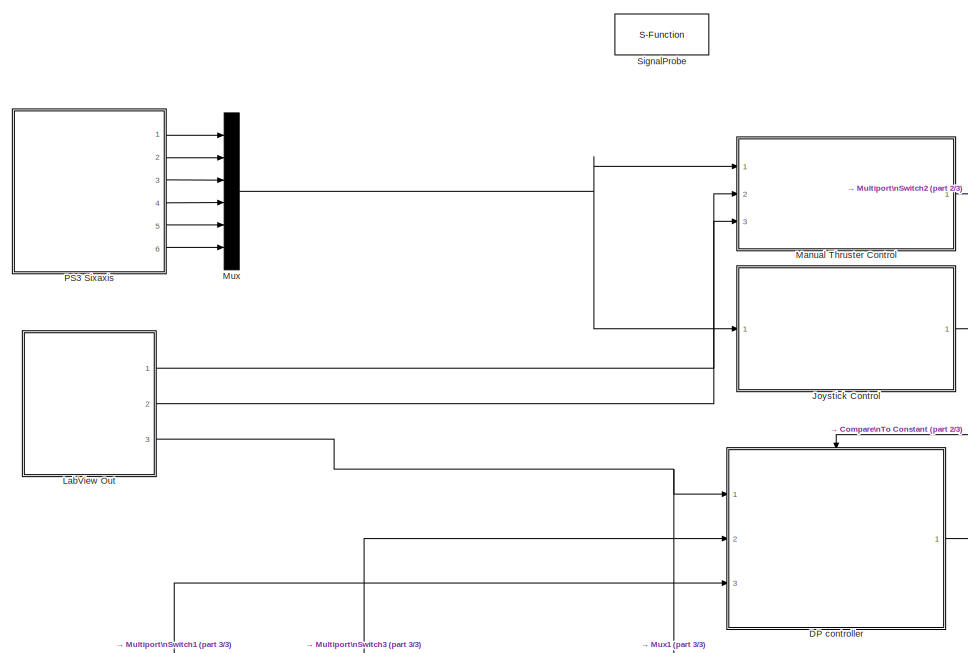
[diagram: root canvas - part 1/3, top left region]
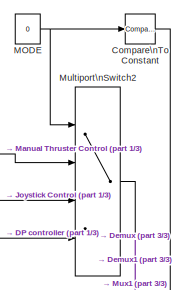
[diagram: root canvas - part 2/3, top right region]
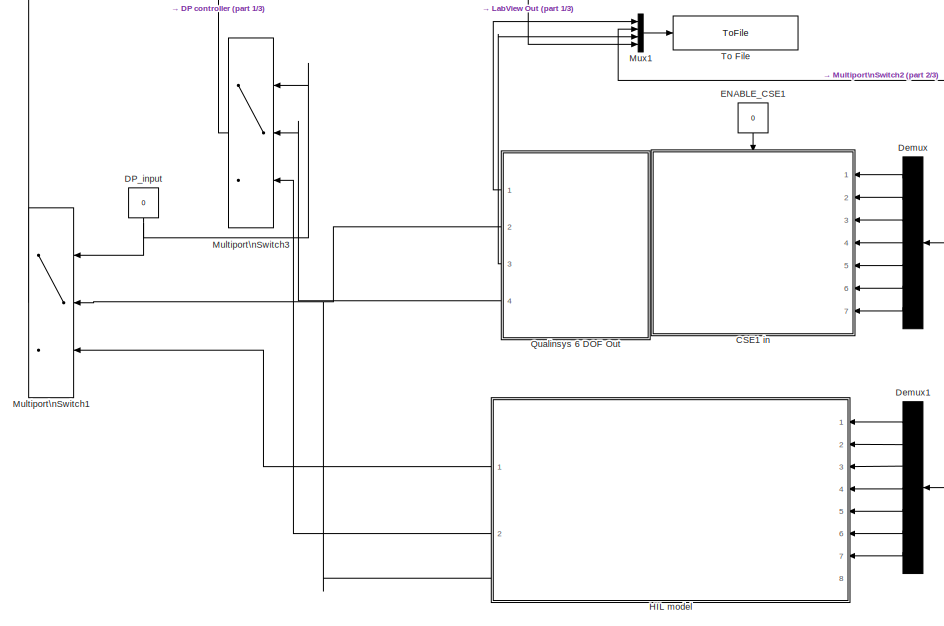
[diagram: root canvas - part 3/3, bottom center region]
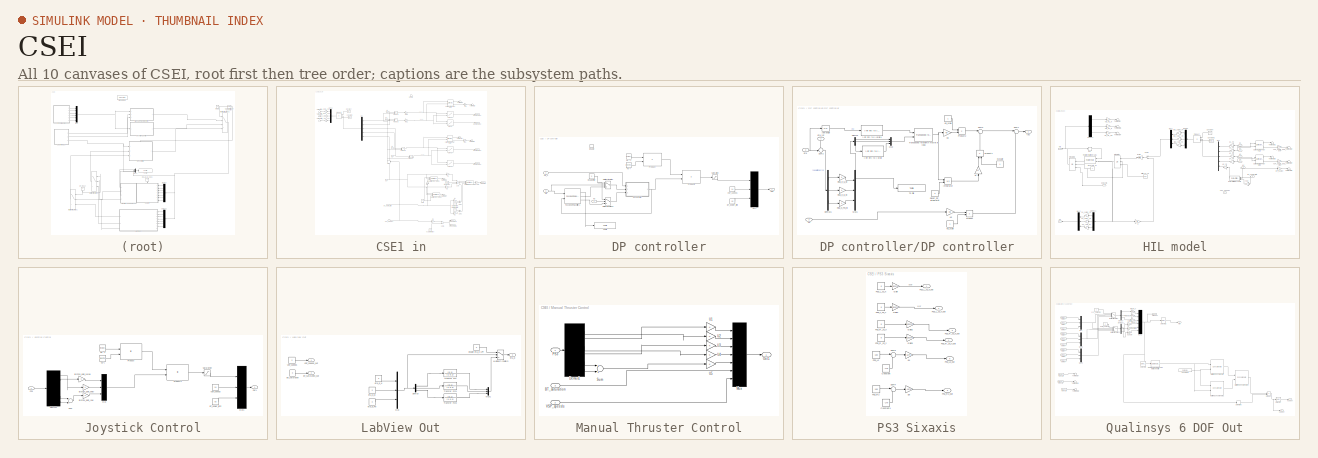
[diagram: thumbnail index - all 10 canvases of the model, root first then tree order]
MODEL CSEI
KIND model
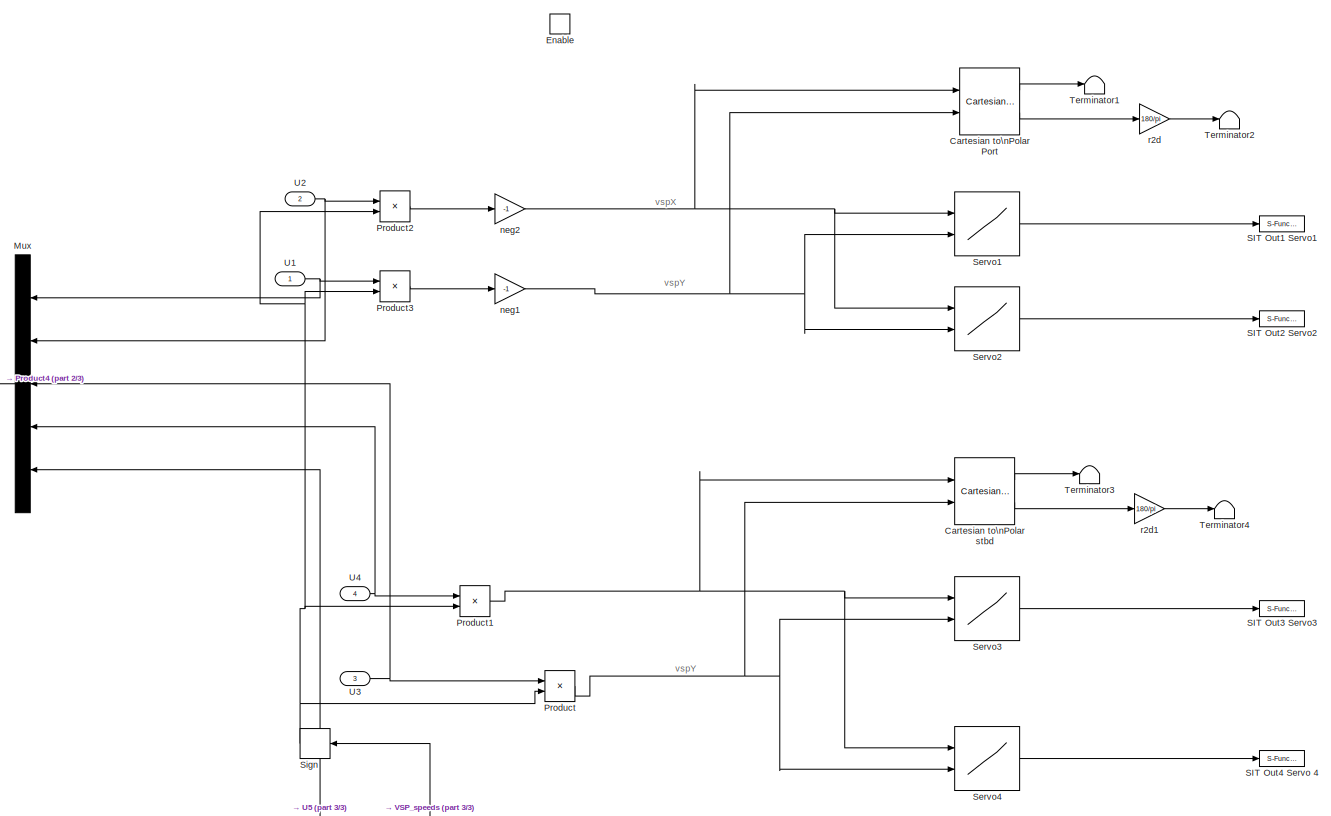
[diagram: CSE1 in - part 1/3, top center region]
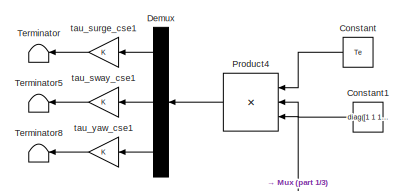
[diagram: CSE1 in - part 2/3, top left region]
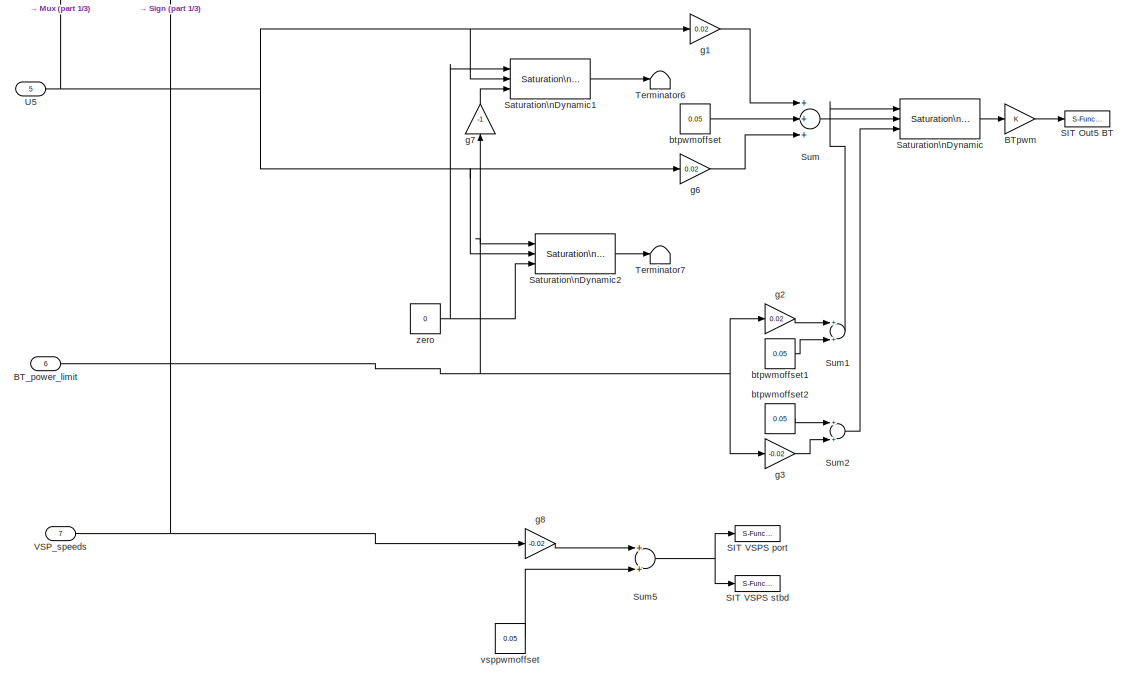
[diagram: CSE1 in - part 3/3, bottom right region]
BLOCK [SubSystem] CSE1 in
  FunctionWithSeparateData = off
  MaskHideContents = off
  MinAlgLoopOccurrences = off
  Opaque = off
  Ports = [7, 0, 1]
  PropExecContextOutsideSubsystem = off
  RTWSystemCode = Auto
  RequestExecContextInheritance = off
BLOCK [Inport] CSE1 in/BT_power_limit
  IconDisplay = Port number
  OutDataType = fixdt(1, 16)
  OutScaling = 2^0
  Port = 6
BLOCK [Gain] CSE1 in/BTpwm
  OutDataType = fixdt(1, 16)
  OutDataTypeMode = Inherit via internal rule
  OutDataTypeStr = Inherit: Inherit via internal rule
  OutScaling = 2^0
  ParamDataTypeStr = Inherit: Inherit via internal rule
  ParameterDataType = fixdt(1, 16)
  ParameterDataTypeMode = Inherit via internal rule
  ParameterScaling = 2^0
  SaturateOnIntegerOverflow = off
BLOCK [Reference] CSE1 in/Cartesian to\nPolar Port  REF=simulink_extras/Transformations/Cartesian to\nPolar
  FunctionWithSeparateData = off
  Ports = [2, 2]
  RTWMemSecDataConstants = Inherit from model
  RTWMemSecDataInternal = Inherit from model
  RTWMemSecDataParameters = Inherit from model
  RTWMemSecFuncExecute = Inherit from model
  RTWMemSecFuncInitTerm = Inherit from model
  ShowPortLabels = FromPortIcon
  SourceBlock = simulink_extras/Transformations/Cartesian to\nPolar
  SourceType = Cart2Polar
  SystemSampleTime = -1
BLOCK [Reference] CSE1 in/Cartesian to\nPolar stbd  REF=simulink_extras/Transformations/Cartesian to\nPolar
  FunctionWithSeparateData = off
  Ports = [2, 2]
  RTWMemSecDataConstants = Inherit from model
  RTWMemSecDataInternal = Inherit from model
  RTWMemSecDataParameters = Inherit from model
  RTWMemSecFuncExecute = Inherit from model
  RTWMemSecFuncInitTerm = Inherit from model
  ShowPortLabels = FromPortIcon
  SourceBlock = simulink_extras/Transformations/Cartesian to\nPolar
  SourceType = Cart2Polar
  SystemSampleTime = -1
BLOCK [Constant] CSE1 in/Constant
  Value = Te
BLOCK [Constant] CSE1 in/Constant1
  Value = diag([1 1 1 1 1])
BLOCK [Demux] CSE1 in/Demux
  DisplayOption = bar
  Outputs = 3
  Ports = [1, 3]
BLOCK [EnablePort] CSE1 in/Enable
  Ports = []
BLOCK [Mux] CSE1 in/Mux
  DisplayOption = bar
  Inputs = 5
  Ports = [5, 1]
BLOCK [Product] CSE1 in/Product
  InputSameDT = off
  OutDataType = fixdt(1, 16)
  OutDataTypeMode = Inherit via internal rule
  OutDataTypeStr = Inherit: Inherit via internal rule
  OutScaling = 2^0
  Ports = [2, 1]
  SaturateOnIntegerOverflow = off
BLOCK [Product] CSE1 in/Product1
  InputSameDT = off
  OutDataType = fixdt(1, 16)
  OutDataTypeMode = Inherit via internal rule
  OutDataTypeStr = Inherit: Inherit via internal rule
  OutScaling = 2^0
  Ports = [2, 1]
  SaturateOnIntegerOverflow = off
BLOCK [Product] CSE1 in/Product2
  InputSameDT = off
  OutDataType = fixdt(1, 16)
  OutDataTypeMode = Inherit via internal rule
  OutDataTypeStr = Inherit: Inherit via internal rule
  OutScaling = 2^0
  Ports = [2, 1]
  SaturateOnIntegerOverflow = off
BLOCK [Product] CSE1 in/Product3
  InputSameDT = off
  OutDataType = fixdt(1, 16)
  OutDataTypeMode = Inherit via internal rule
  OutDataTypeStr = Inherit: Inherit via internal rule
  OutScaling = 2^0
  Ports = [2, 1]
  SaturateOnIntegerOverflow = off
BLOCK [Product] CSE1 in/Product4
  InputSameDT = off
  Inputs = 3
  Multiplication = Matrix(*)
  OutDataTypeMode = Inherit via internal rule
  OutDataTypeStr = Inherit: Inherit via internal rule
  Ports = [3, 1]
  SaturateOnIntegerOverflow = off
BLOCK [S-Function] CSE1 in/SIT Out1 Servo1
  CopyFcn = NI_SIT_IO_callbacks(1);
  DeleteFcn = NI_SIT_IO_callbacks(2);
  EnableBusSupport = off
  FunctionName = NI_SIT_IO
  MaskCallbackString = NI_SIT_IO_callbacks(3);|||NI_SIT_IO_callbacks(4);||
  MaskDescription = Use this outport on any level of nested subsystems to allow the LabVIEW Simulation Interface Toolkit to map hardware to it.
  MaskDisplay = patch([-x x], [-y y], [.90980 .81960 .32156]);\nplot([0 -x x 0], [rad -y y rad]);\nfprintf('SIT%d', portnum);
  MaskEnableString = on,on,on,on,on,on
  MaskIconFrame = off
  MaskIconOpaque = on
  MaskIconRotate = none
  MaskIconUnits = autoscale
  MaskInitialization = NI_SIT_IO_init;
  MaskPortRotate = default
  MaskPromptString = Port number:|Port dimensions (-1 for dynamically sized):|Sample time (-1 for inherited):|Data type:|Signal type:|Block type:
  MaskStyleString = edit,edit,edit,popup(auto|double|single|int8|uint8|int16|uint16|int32|uint32|boolean),popup(auto|real|complex),edit
  MaskTabNameString = Parameters,Parameters,Parameters,Parameters,Parameters,Parameters
  MaskToolTipString = on,on,on,on,on,on
  MaskTunableValueString = off,off,off,off,off,off
  MaskType = SIT Outport
  MaskValueString = 1|-1|-1|auto|auto|0
  MaskVarAliasString = ,,,,,
  MaskVariables = portnum=@1;width=@2;stime=@3;dtype=@4;stype=@5;btype=@6;
  MaskVisibilityString = on,on,on,on,on,off
  Parameters = width dtype portnum stime stype btype
  Ports = [1]
  Priority = 1
BLOCK [S-Function] CSE1 in/SIT Out2 Servo2
  CopyFcn = NI_SIT_IO_callbacks(1);
  DeleteFcn = NI_SIT_IO_callbacks(2);
  EnableBusSupport = off
  FunctionName = NI_SIT_IO
  MaskCallbackString = NI_SIT_IO_callbacks(3);|||NI_SIT_IO_callbacks(4);||
  MaskDescription = Use this outport on any level of nested subsystems to allow the LabVIEW Simulation Interface Toolkit to map hardware to it.
  MaskDisplay = patch([-x x], [-y y], [.90980 .81960 .32156]);\nplot([0 -x x 0], [rad -y y rad]);\nfprintf('SIT%d', portnum);
  MaskEnableString = on,on,on,on,on,on
  MaskIconFrame = off
  MaskIconOpaque = on
  MaskIconRotate = none
  MaskIconUnits = autoscale
  MaskInitialization = NI_SIT_IO_init;
  MaskPortRotate = default
  MaskPromptString = Port number:|Port dimensions (-1 for dynamically sized):|Sample time (-1 for inherited):|Data type:|Signal type:|Block type:
  MaskStyleString = edit,edit,edit,popup(auto|double|single|int8|uint8|int16|uint16|int32|uint32|boolean),popup(auto|real|complex),edit
  MaskTabNameString = Parameters,Parameters,Parameters,Parameters,Parameters,Parameters
  MaskToolTipString = on,on,on,on,on,on
  MaskTunableValueString = off,off,off,off,off,off
  MaskType = SIT Outport
  MaskValueString = 2|-1|-1|auto|auto|0
  MaskVarAliasString = ,,,,,
  MaskVariables = portnum=@1;width=@2;stime=@3;dtype=@4;stype=@5;btype=@6;
  MaskVisibilityString = on,on,on,on,on,off
  Parameters = width dtype portnum stime stype btype
  Ports = [1]
  Priority = 2
BLOCK [S-Function] CSE1 in/SIT Out3 Servo3
  CopyFcn = NI_SIT_IO_callbacks(1);
  DeleteFcn = NI_SIT_IO_callbacks(2);
  EnableBusSupport = off
  FunctionName = NI_SIT_IO
  MaskCallbackString = NI_SIT_IO_callbacks(3);|||NI_SIT_IO_callbacks(4);||
  MaskDescription = Use this outport on any level of nested subsystems to allow the LabVIEW Simulation Interface Toolkit to map hardware to it.
  MaskDisplay = patch([-x x], [-y y], [.90980 .81960 .32156]);\nplot([0 -x x 0], [rad -y y rad]);\nfprintf('SIT%d', portnum);
  MaskEnableString = on,on,on,on,on,on
  MaskIconFrame = off
  MaskIconOpaque = on
  MaskIconRotate = none
  MaskIconUnits = autoscale
  MaskInitialization = NI_SIT_IO_init;
  MaskPortRotate = default
  MaskPromptString = Port number:|Port dimensions (-1 for dynamically sized):|Sample time (-1 for inherited):|Data type:|Signal type:|Block type:
  MaskStyleString = edit,edit,edit,popup(auto|double|single|int8|uint8|int16|uint16|int32|uint32|boolean),popup(auto|real|complex),edit
  MaskTabNameString = Parameters,Parameters,Parameters,Parameters,Parameters,Parameters
  MaskToolTipString = on,on,on,on,on,on
  MaskTunableValueString = off,off,off,off,off,off
  MaskType = SIT Outport
  MaskValueString = 3|-1|-1|auto|auto|0
  MaskVarAliasString = ,,,,,
  MaskVariables = portnum=@1;width=@2;stime=@3;dtype=@4;stype=@5;btype=@6;
  MaskVisibilityString = on,on,on,on,on,off
  Parameters = width dtype portnum stime stype btype
  Ports = [1]
  Priority = 3
BLOCK [S-Function] CSE1 in/SIT Out4 Servo 4
  CopyFcn = NI_SIT_IO_callbacks(1);
  DeleteFcn = NI_SIT_IO_callbacks(2);
  EnableBusSupport = off
  FunctionName = NI_SIT_IO
  MaskCallbackString = NI_SIT_IO_callbacks(3);|||NI_SIT_IO_callbacks(4);||
  MaskDescription = Use this outport on any level of nested subsystems to allow the LabVIEW Simulation Interface Toolkit to map hardware to it.
  MaskDisplay = patch([-x x], [-y y], [.90980 .81960 .32156]);\nplot([0 -x x 0], [rad -y y rad]);\nfprintf('SIT%d', portnum);
  MaskEnableString = on,on,on,on,on,on
  MaskIconFrame = off
  MaskIconOpaque = on
  MaskIconRotate = none
  MaskIconUnits = autoscale
  MaskInitialization = NI_SIT_IO_init;
  MaskPortRotate = default
  MaskPromptString = Port number:|Port dimensions (-1 for dynamically sized):|Sample time (-1 for inherited):|Data type:|Signal type:|Block type:
  MaskStyleString = edit,edit,edit,popup(auto|double|single|int8|uint8|int16|uint16|int32|uint32|boolean),popup(auto|real|complex),edit
  MaskTabNameString = Parameters,Parameters,Parameters,Parameters,Parameters,Parameters
  MaskToolTipString = on,on,on,on,on,on
  MaskTunableValueString = off,off,off,off,off,off
  MaskType = SIT Outport
  MaskValueString = 4|-1|-1|auto|auto|0
  MaskVarAliasString = ,,,,,
  MaskVariables = portnum=@1;width=@2;stime=@3;dtype=@4;stype=@5;btype=@6;
  MaskVisibilityString = on,on,on,on,on,off
  Parameters = width dtype portnum stime stype btype
  Ports = [1]
  Priority = 4
BLOCK [S-Function] CSE1 in/SIT Out5 BT
  CopyFcn = NI_SIT_IO_callbacks(1);
  DeleteFcn = NI_SIT_IO_callbacks(2);
  EnableBusSupport = off
  FunctionName = NI_SIT_IO
  MaskCallbackString = NI_SIT_IO_callbacks(3);|||NI_SIT_IO_callbacks(4);||
  MaskDescription = Use this outport on any level of nested subsystems to allow the LabVIEW Simulation Interface Toolkit to map hardware to it.
  MaskDisplay = patch([-x x], [-y y], [.90980 .81960 .32156]);\nplot([0 -x x 0], [rad -y y rad]);\nfprintf('SIT%d', portnum);
  MaskEnableString = on,on,on,on,on,on
  MaskIconFrame = off
  MaskIconOpaque = on
  MaskIconRotate = none
  MaskIconUnits = autoscale
  MaskInitialization = NI_SIT_IO_init;
  MaskPortRotate = default
  MaskPromptString = Port number:|Port dimensions (-1 for dynamically sized):|Sample time (-1 for inherited):|Data type:|Signal type:|Block type:
  MaskStyleString = edit,edit,edit,popup(auto|double|single|int8|uint8|int16|uint16|int32|uint32|boolean),popup(auto|real|complex),edit
  MaskTabNameString = Parameters,Parameters,Parameters,Parameters,Parameters,Parameters
  MaskToolTipString = on,on,on,on,on,on
  MaskTunableValueString = off,off,off,off,off,off
  MaskType = SIT Outport
  MaskValueString = 5|-1|-1|auto|auto|0
  MaskVarAliasString = ,,,,,
  MaskVariables = portnum=@1;width=@2;stime=@3;dtype=@4;stype=@5;btype=@6;
  MaskVisibilityString = on,on,on,on,on,off
  Parameters = width dtype portnum stime stype btype
  Ports = [1]
  Priority = 5
BLOCK [S-Function] CSE1 in/SIT VSPS port
  CopyFcn = NI_SIT_IO_callbacks(1);
  DeleteFcn = NI_SIT_IO_callbacks(2);
  EnableBusSupport = off
  FunctionName = NI_SIT_IO
  MaskCallbackString = NI_SIT_IO_callbacks(3);|||NI_SIT_IO_callbacks(4);||
  MaskDescription = Use this outport on any level of nested subsystems to allow the LabVIEW Simulation Interface Toolkit to map hardware to it.
  MaskDisplay = patch([-x x], [-y y], [.90980 .81960 .32156]);\nplot([0 -x x 0], [rad -y y rad]);\nfprintf('SIT%d', portnum);
  MaskEnableString = on,on,on,on,on,on
  MaskIconFrame = off
  MaskIconOpaque = on
  MaskIconRotate = none
  MaskIconUnits = autoscale
  MaskInitialization = NI_SIT_IO_init;
  MaskPortRotate = default
  MaskPromptString = Port number:|Port dimensions (-1 for dynamically sized):|Sample time (-1 for inherited):|Data type:|Signal type:|Block type:
  MaskStyleString = edit,edit,edit,popup(auto|double|single|int8|uint8|int16|uint16|int32|uint32|boolean),popup(auto|real|complex),edit
  MaskTabNameString = Parameters,Parameters,Parameters,Parameters,Parameters,Parameters
  MaskToolTipString = on,on,on,on,on,on
  MaskTunableValueString = off,off,off,off,off,off
  MaskType = SIT Outport
  MaskValueString = 6|-1|-1|auto|auto|0
  MaskVarAliasString = ,,,,,
  MaskVariables = portnum=@1;width=@2;stime=@3;dtype=@4;stype=@5;btype=@6;
  MaskVisibilityString = on,on,on,on,on,off
  Parameters = width dtype portnum stime stype btype
  Ports = [1]
  Priority = 6
BLOCK [S-Function] CSE1 in/SIT VSPS stbd
  CopyFcn = NI_SIT_IO_callbacks(1);
  DeleteFcn = NI_SIT_IO_callbacks(2);
  EnableBusSupport = off
  FunctionName = NI_SIT_IO
  MaskCallbackString = NI_SIT_IO_callbacks(3);|||NI_SIT_IO_callbacks(4);||
  MaskDescription = Use this outport on any level of nested subsystems to allow the LabVIEW Simulation Interface Toolkit to map hardware to it.
  MaskDisplay = patch([-x x], [-y y], [.90980 .81960 .32156]);\nplot([0 -x x 0], [rad -y y rad]);\nfprintf('SIT%d', portnum);
  MaskEnableString = on,on,on,on,on,on
  MaskIconFrame = off
  MaskIconOpaque = on
  MaskIconRotate = none
  MaskIconUnits = autoscale
  MaskInitialization = NI_SIT_IO_init;
  MaskPortRotate = default
  MaskPromptString = Port number:|Port dimensions (-1 for dynamically sized):|Sample time (-1 for inherited):|Data type:|Signal type:|Block type:
  MaskStyleString = edit,edit,edit,popup(auto|double|single|int8|uint8|int16|uint16|int32|uint32|boolean),popup(auto|real|complex),edit
  MaskTabNameString = Parameters,Parameters,Parameters,Parameters,Parameters,Parameters
  MaskToolTipString = on,on,on,on,on,on
  MaskTunableValueString = off,off,off,off,off,off
  MaskType = SIT Outport
  MaskValueString = 7|-1|-1|auto|auto|0
  MaskVarAliasString = ,,,,,
  MaskVariables = portnum=@1;width=@2;stime=@3;dtype=@4;stype=@5;btype=@6;
  MaskVisibilityString = on,on,on,on,on,off
  Parameters = width dtype portnum stime stype btype
  Ports = [1]
  Priority = 7
BLOCK [Reference] CSE1 in/Saturation\nDynamic  REF=simulink/Discontinuities/Saturation\nDynamic
  DoSatur = off
  FunctionWithSeparateData = off
  LockScale = off
  OutDataType = fixdt(1, 16)
  OutDataTypeStr = Inherit: Same as second input
  OutMax = []
  OutMin = []
  OutScaling = 2^-10
  OutputDataTypeScalingMode = Same as second input
  Ports = [3, 1]
  RTWMemSecDataConstants = Inherit from model
  RTWMemSecDataInternal = Inherit from model
  RTWMemSecDataParameters = Inherit from model
  RTWMemSecFuncExecute = Inherit from model
  RTWMemSecFuncInitTerm = Inherit from model
  RndMeth = Floor
  ShowPortLabels = FromPortIcon
  SourceBlock = simulink/Discontinuities/Saturation\nDynamic
  SourceType = Saturation Dynamic
  SystemSampleTime = -1
BLOCK [Reference] CSE1 in/Saturation\nDynamic1  REF=simulink/Discontinuities/Saturation\nDynamic
  DoSatur = off
  FunctionWithSeparateData = off
  LockScale = off
  OutDataType = fixdt(1, 16)
  OutDataTypeStr = Inherit: Same as second input
  OutMax = []
  OutMin = []
  OutScaling = 2^-10
  OutputDataTypeScalingMode = Same as second input
  Ports = [3, 1]
  RTWMemSecDataConstants = Inherit from model
  RTWMemSecDataInternal = Inherit from model
  RTWMemSecDataParameters = Inherit from model
  RTWMemSecFuncExecute = Inherit from model
  RTWMemSecFuncInitTerm = Inherit from model
  RndMeth = Floor
  ShowPortLabels = FromPortIcon
  SourceBlock = simulink/Discontinuities/Saturation\nDynamic
  SourceType = Saturation Dynamic
  SystemSampleTime = -1
BLOCK [Reference] CSE1 in/Saturation\nDynamic2  REF=simulink/Discontinuities/Saturation\nDynamic
  DoSatur = off
  FunctionWithSeparateData = off
  LockScale = off
  OutDataType = fixdt(1, 16)
  OutDataTypeStr = Inherit: Same as second input
  OutMax = []
  OutMin = []
  OutScaling = 2^-10
  OutputDataTypeScalingMode = Same as second input
  Ports = [3, 1]
  RTWMemSecDataConstants = Inherit from model
  RTWMemSecDataInternal = Inherit from model
  RTWMemSecDataParameters = Inherit from model
  RTWMemSecFuncExecute = Inherit from model
  RTWMemSecFuncInitTerm = Inherit from model
  RndMeth = Floor
  ShowPortLabels = FromPortIcon
  SourceBlock = simulink/Discontinuities/Saturation\nDynamic
  SourceType = Saturation Dynamic
  SystemSampleTime = -1
BLOCK [Lookup2D] CSE1 in/Servo1
  ColumnIndex = [-1,0,1]
  InputSameDT = off
  OutDataType = fixdt(1, 16)
  OutScaling = 2^0
  RowIndex = [-1,0,1]
  SaturateOnIntegerOverflow = off
  Table = reshape([0.06,0.0495363,0.043301,0.06,0.052446,0.043301,0.06,0.0541518,0.043301],3,3)
BLOCK [Lookup2D] CSE1 in/Servo2
  ColumnIndex = [-1,0,1]
  InputSameDT = off
  OutDataType = fixdt(1, 16)
  OutScaling = 2^0
  RowIndex = [-1,0,1]
  SaturateOnIntegerOverflow = off
  Table = reshape([0.03860880,0.0386088,0.03860880,0.0459941,0.0477243,0.0500953,0.057,0.057,0.057],3,3)
BLOCK [Lookup2D] CSE1 in/Servo3
  ColumnIndex = [-1,0,1]
  InputSameDT = off
  OutDataType = fixdt(1, 16)
  OutScaling = 2^0
  RowIndex = [-1,0,1]
  SaturateOnIntegerOverflow = off
  Table = reshape([0.0640809,0.0640809,0.0640809,0.0539629,0.0541315,0.0556492,0.0442664,0.0442664,0.0442664],3,3)
BLOCK [Lookup2D] CSE1 in/Servo4
  ColumnIndex = [-1,0,1]
  InputSameDT = off
  OutDataType = fixdt(1, 16)
  OutScaling = 2^0
  RowIndex = [-1,0,1]
  SaturateOnIntegerOverflow = off
  Table = reshape([0.0602867,0.0470489,0.0403879,0.0602867,0.049747,0.0403879,0.0602867,0.0526138,0.0403879],3,3)
BLOCK [Signum] CSE1 in/Sign
BLOCK [Sum] CSE1 in/Sum
  InputSameDT = off
  Inputs = +++
  OutDataType = fixdt(1, 16)
  OutDataTypeMode = Inherit via internal rule
  OutDataTypeStr = Inherit: Inherit via internal rule
  OutScaling = 2^0
  Ports = [3, 1]
  SaturateOnIntegerOverflow = off
BLOCK [Sum] CSE1 in/Sum1
  InputSameDT = off
  OutDataType = fixdt(1, 16)
  OutDataTypeMode = Inherit via internal rule
  OutDataTypeStr = Inherit: Inherit via internal rule
  OutScaling = 2^0
  Ports = [2, 1]
  SaturateOnIntegerOverflow = off
BLOCK [Sum] CSE1 in/Sum2
  InputSameDT = off
  OutDataType = fixdt(1, 16)
  OutDataTypeMode = Inherit via internal rule
  OutDataTypeStr = Inherit: Inherit via internal rule
  OutScaling = 2^0
  Ports = [2, 1]
  SaturateOnIntegerOverflow = off
BLOCK [Sum] CSE1 in/Sum5
  InputSameDT = off
  OutDataType = fixdt(1, 16)
  OutDataTypeMode = Inherit via internal rule
  OutDataTypeStr = Inherit: Inherit via internal rule
  OutScaling = 2^0
  Ports = [2, 1]
  SaturateOnIntegerOverflow = off
BLOCK [Terminator] CSE1 in/Terminator
BLOCK [Terminator] CSE1 in/Terminator1
BLOCK [Terminator] CSE1 in/Terminator2
BLOCK [Terminator] CSE1 in/Terminator3
BLOCK [Terminator] CSE1 in/Terminator4
BLOCK [Terminator] CSE1 in/Terminator5
BLOCK [Terminator] CSE1 in/Terminator6
BLOCK [Terminator] CSE1 in/Terminator7
BLOCK [Terminator] CSE1 in/Terminator8
BLOCK [Inport] CSE1 in/U1
  IconDisplay = Port number
  OutDataType = fixdt(1, 16)
  OutScaling = 2^0
BLOCK [Inport] CSE1 in/U2
  IconDisplay = Port number
  OutDataType = fixdt(1, 16)
  OutScaling = 2^0
  Port = 2
BLOCK [Inport] CSE1 in/U3
  IconDisplay = Port number
  OutDataType = fixdt(1, 16)
  OutScaling = 2^0
  Port = 3
BLOCK [Inport] CSE1 in/U4
  IconDisplay = Port number
  OutDataType = fixdt(1, 16)
  OutScaling = 2^0
  Port = 4
BLOCK [Inport] CSE1 in/U5
  IconDisplay = Port number
  OutDataType = fixdt(1, 16)
  OutScaling = 2^0
  Port = 5
BLOCK [Inport] CSE1 in/VSP_speeds
  IconDisplay = Port number
  OutDataType = fixdt(1, 16)
  OutScaling = 2^0
  Port = 7
BLOCK [Constant] CSE1 in/btpwmoffset
  OutDataType = fixdt(1, 16)
  OutScaling = 2^0
  Value = 0.05
BLOCK [Constant] CSE1 in/btpwmoffset1
  OutDataType = fixdt(1, 16)
  OutScaling = 2^0
  Value = 0.05
BLOCK [Constant] CSE1 in/btpwmoffset2
  OutDataType = fixdt(1, 16)
  OutScaling = 2^0
  Value = 0.05
BLOCK [Gain] CSE1 in/g1
  Gain = 0.02
  OutDataType = fixdt(1, 16)
  OutDataTypeMode = Inherit via internal rule
  OutDataTypeStr = Inherit: Inherit via internal rule
  OutScaling = 2^0
  ParamDataTypeStr = Inherit: Inherit via internal rule
  ParameterDataType = fixdt(1, 16)
  ParameterDataTypeMode = Inherit via internal rule
  ParameterScaling = 2^0
  SaturateOnIntegerOverflow = off
BLOCK [Gain] CSE1 in/g2
  Gain = 0.02
  OutDataType = fixdt(1, 16)
  OutDataTypeMode = Inherit via internal rule
  OutDataTypeStr = Inherit: Inherit via internal rule
  OutScaling = 2^0
  ParamDataTypeStr = Inherit: Inherit via internal rule
  ParameterDataType = fixdt(1, 16)
  ParameterDataTypeMode = Inherit via internal rule
  ParameterScaling = 2^0
  SaturateOnIntegerOverflow = off
BLOCK [Gain] CSE1 in/g3
  Gain = -0.02
  OutDataType = fixdt(1, 16)
  OutDataTypeMode = Inherit via internal rule
  OutDataTypeStr = Inherit: Inherit via internal rule
  OutScaling = 2^0
  ParamDataTypeStr = Inherit: Inherit via internal rule
  ParameterDataType = fixdt(1, 16)
  ParameterDataTypeMode = Inherit via internal rule
  ParameterScaling = 2^0
  SaturateOnIntegerOverflow = off
BLOCK [Gain] CSE1 in/g6
  Gain = 0.02
  OutDataType = fixdt(1, 16)
  OutDataTypeMode = Inherit via internal rule
  OutDataTypeStr = Inherit: Inherit via internal rule
  OutScaling = 2^0
  ParamDataTypeStr = Inherit: Inherit via internal rule
  ParameterDataType = fixdt(1, 16)
  ParameterDataTypeMode = Inherit via internal rule
  ParameterScaling = 2^0
  SaturateOnIntegerOverflow = off
BLOCK [Gain] CSE1 in/g7
  Gain = -1
  OutDataType = fixdt(1, 16)
  OutDataTypeMode = Inherit via internal rule
  OutDataTypeStr = Inherit: Inherit via internal rule
  OutScaling = 2^0
  ParamDataTypeStr = Inherit: Inherit via internal rule
  ParameterDataType = fixdt(1, 16)
  ParameterDataTypeMode = Inherit via internal rule
  ParameterScaling = 2^0
  SaturateOnIntegerOverflow = off
BLOCK [Gain] CSE1 in/g8
  Gain = -0.02
  OutDataType = fixdt(1, 16)
  OutDataTypeMode = Inherit via internal rule
  OutDataTypeStr = Inherit: Inherit via internal rule
  OutScaling = 2^0
  ParamDataTypeStr = Inherit: Inherit via internal rule
  ParameterDataType = fixdt(1, 16)
  ParameterDataTypeMode = Inherit via internal rule
  ParameterScaling = 2^0
  SaturateOnIntegerOverflow = off
BLOCK [Gain] CSE1 in/neg1
  Gain = -1
  OutDataType = fixdt(1, 16)
  OutDataTypeMode = Inherit via internal rule
  OutDataTypeStr = Inherit: Inherit via internal rule
  OutScaling = 2^0
  ParamDataTypeStr = Inherit: Inherit via internal rule
  ParameterDataType = fixdt(1, 16)
  ParameterDataTypeMode = Inherit via internal rule
  ParameterScaling = 2^0
  SaturateOnIntegerOverflow = off
BLOCK [Gain] CSE1 in/neg2
  Gain = -1
  OutDataType = fixdt(1, 16)
  OutDataTypeMode = Inherit via internal rule
  OutDataTypeStr = Inherit: Inherit via internal rule
  OutScaling = 2^0
  ParamDataTypeStr = Inherit: Inherit via internal rule
  ParameterDataType = fixdt(1, 16)
  ParameterDataTypeMode = Inherit via internal rule
  ParameterScaling = 2^0
  SaturateOnIntegerOverflow = off
BLOCK [Gain] CSE1 in/r2d
  Gain = 180/pi
  OutDataType = fixdt(1, 16)
  OutDataTypeMode = Inherit via internal rule
  OutDataTypeStr = Inherit: Inherit via internal rule
  OutScaling = 2^0
  ParamDataTypeStr = Inherit: Inherit via internal rule
  ParameterDataType = fixdt(1, 16)
  ParameterDataTypeMode = Inherit via internal rule
  ParameterScaling = 2^0
  SaturateOnIntegerOverflow = off
BLOCK [Gain] CSE1 in/r2d1
  Gain = 180/pi
  OutDataType = fixdt(1, 16)
  OutDataTypeMode = Inherit via internal rule
  OutDataTypeStr = Inherit: Inherit via internal rule
  OutScaling = 2^0
  ParamDataTypeStr = Inherit: Inherit via internal rule
  ParameterDataType = fixdt(1, 16)
  ParameterDataTypeMode = Inherit via internal rule
  ParameterScaling = 2^0
  SaturateOnIntegerOverflow = off
BLOCK [Gain] CSE1 in/tau_surge_cse1
  OutDataType = fixdt(1, 16)
  OutDataTypeMode = Inherit via internal rule
  OutDataTypeStr = Inherit: Inherit via internal rule
  OutScaling = 2^0
  ParamDataTypeStr = Inherit: Inherit via internal rule
  ParameterDataType = fixdt(1, 16)
  ParameterDataTypeMode = Inherit via internal rule
  ParameterScaling = 2^0
  SaturateOnIntegerOverflow = off
BLOCK [Gain] CSE1 in/tau_sway_cse1
  OutDataType = fixdt(1, 16)
  OutDataTypeMode = Inherit via internal rule
  OutDataTypeStr = Inherit: Inherit via internal rule
  OutScaling = 2^0
  ParamDataTypeStr = Inherit: Inherit via internal rule
  ParameterDataType = fixdt(1, 16)
  ParameterDataTypeMode = Inherit via internal rule
  ParameterScaling = 2^0
  SaturateOnIntegerOverflow = off
BLOCK [Gain] CSE1 in/tau_yaw_cse1
  OutDataType = fixdt(1, 16)
  OutDataTypeMode = Inherit via internal rule
  OutDataTypeStr = Inherit: Inherit via internal rule
  OutScaling = 2^0
  ParamDataTypeStr = Inherit: Inherit via internal rule
  ParameterDataType = fixdt(1, 16)
  ParameterDataTypeMode = Inherit via internal rule
  ParameterScaling = 2^0
  SaturateOnIntegerOverflow = off
BLOCK [Constant] CSE1 in/vsppwmoffset
  OutDataType = fixdt(1, 16)
  OutScaling = 2^0
  Value = 0.05
BLOCK [Constant] CSE1 in/zero
  OutDataType = fixdt(1, 16)
  OutScaling = 2^0
  Value = 0
BLOCK [Reference] Compare\nTo Constant  REF=simulink/Logic and Bit\nOperations/Compare\nTo Constant
  FunctionWithSeparateData = off
  LogicOutDataTypeMode = uint8
  Ports = [1, 1]
  RTWMemSecDataConstants = Inherit from model
  RTWMemSecDataInternal = Inherit from model
  RTWMemSecDataParameters = Inherit from model
  RTWMemSecFuncExecute = Inherit from model
  RTWMemSecFuncInitTerm = Inherit from model
  ShowPortLabels = FromPortIcon
  SourceBlock = simulink/Logic and Bit\nOperations/Compare\nTo Constant
  SourceType = Compare To Constant
  SystemSampleTime = -1
  ZeroCross = on
  const = 2
  relop = ==
BLOCK [SubSystem] DP controller
  FunctionWithSeparateData = off
  MaskHideContents = off
  MinAlgLoopOccurrences = off
  Opaque = off
  Ports = [3, 1, 1]
  PropExecContextOutsideSubsystem = off
  RTWSystemCode = Auto
  RequestExecContextInheritance = off
BLOCK [Constant] DP controller/BT_power_limit
  OutDataType = fixdt(1, 16)
  OutScaling = 2^0
  Value = 0.5
BLOCK [SubSystem] DP controller/DP controller
  FunctionWithSeparateData = off
  MaskCallbackString = ||
  MaskDescription = Nonlinear PID controller for Set-Point Reulation in Surge, Sway and Yaw
  MaskDisplay = disp('Nonlinear PID\\n set-point controller')
  MaskEnableString = on,on,on
  MaskHelp = The nonlinear  PID controller uses the rotation matrix in yaw for proper scaling of the surge, sway and yaw gains as a function of the yaw angle. \nINPUTS: (1) eta_ref, (2) eta, (3) nu. OUPUTS: (1) tau.
  MaskHideContents = off
  MaskIconFrame = on
  MaskIconOpaque = off
  MaskIconRotate = none
  MaskIconUnits = autoscale
  MaskPortRotate = default
  MaskPromptString = Proportional Gain Matrix: Kp|Derivative Gain Matrix: Kd|Integral Gain Matrix: Ki
  MaskStyleString = edit,edit,edit
  MaskTabNameString = ,,
  MaskToolTipString = on,on,on
  MaskTunableValueString = on,on,on
  MaskType = Nonlinear DP Controller
  MaskValueString = (0.1)^2*[25.8000 0  0;  0  33.8000  1.0115;  0  1.0115  2.7600 ]|2*0.8*0.1*[25.8000 0  0;  0  33.8000  1.0115;  0  1.0115  2.7600 ]|(0.1^3/10)*[25.8000 0  0;  0  33.8000  1.0115;  0  1.0115  2.7600 ]
  MaskVarAliasString = ,,
  MaskVariables = Kp=@1;Kd=@2;Ki=@3;
  MaskVisibilityString = on,on,on
  MinAlgLoopOccurrences = off
  Opaque = off
  Ports = [3, 1]
  PropExecContextOutsideSubsystem = off
  RTWSystemCode = Auto
  RequestExecContextInheritance = off
BLOCK [Demux] DP controller/DP controller/Demux
  DisplayOption = bar
  Outputs = 3
  Ports = [1, 3]
BLOCK [Demux] DP controller/DP controller/Demux1
  DisplayOption = bar
  Outputs = 3
  Ports = [1, 3]
BLOCK [Integrator] DP controller/DP controller/Integrator
  ExternalReset = level
  Ports = [2, 1]
BLOCK [Gain] DP controller/DP controller/Kd
  Gain = Kd
  Multiplication = Matrix(K*u)
  OutDataType = sfix(16)
  OutScaling = 2^0
  ParameterDataType = sfix(16)
  ParameterScaling = 2^0
BLOCK [Constant] DP controller/DP controller/Kd_scale
  OutDataType = fixdt(1, 16)
  OutScaling = 2^0
BLOCK [Gain] DP controller/DP controller/Ki
  Gain = Ki
  Multiplication = Matrix(K*u)
  OutDataType = sfix(16)
  OutScaling = 2^0
  ParameterDataType = sfix(16)
  ParameterScaling = 2^0
BLOCK [Constant] DP controller/DP controller/Ki_scale
  OutDataType = fixdt(1, 16)
  OutScaling = 2^0
BLOCK [Gain] DP controller/DP controller/Kp
  Gain = Kp
  Multiplication = Matrix(K*u)
  OutDataType = sfix(16)
  OutScaling = 2^0
  ParameterDataType = sfix(16)
  ParameterScaling = 2^0
BLOCK [Constant] DP controller/DP controller/Kp_scale
  OutDataType = fixdt(1, 16)
  OutScaling = 2^0
BLOCK [Mux] DP controller/DP controller/Mux
  DisplayOption = bar
  Inputs = 3
  Ports = [3, 1]
BLOCK [Mux] DP controller/DP controller/Mux1
  DisplayOption = bar
  Inputs = 3
  Ports = [3, 1]
BLOCK [Product] DP controller/DP controller/Product
  InputSameDT = off
  OutDataType = fixdt(1, 16)
  OutDataTypeMode = Inherit via internal rule
  OutDataTypeStr = Inherit: Inherit via internal rule
  OutScaling = 2^0
  Ports = [2, 1]
  SaturateOnIntegerOverflow = off
BLOCK [Product] DP controller/DP controller/Product1
  InputSameDT = off
  OutDataType = fixdt(1, 16)
  OutDataTypeMode = Inherit via internal rule
  OutDataTypeStr = Inherit: Inherit via internal rule
  OutScaling = 2^0
  Ports = [2, 1]
  SaturateOnIntegerOverflow = off
BLOCK [Product] DP controller/DP controller/Product2
  InputSameDT = off
  OutDataType = fixdt(1, 16)
  OutDataTypeMode = Inherit via internal rule
  OutDataTypeStr = Inherit: Inherit via internal rule
  OutScaling = 2^0
  Ports = [2, 1]
  SaturateOnIntegerOverflow = off
BLOCK [Gain] DP controller/DP controller/Reg_e_E_hil
  OutDataType = fixdt(1, 16)
  OutDataTypeMode = Inherit via internal rule
  OutDataTypeStr = Inherit: Inherit via internal rule
  OutScaling = 2^0
  ParamDataTypeStr = Inherit: Inherit via internal rule
  ParameterDataType = fixdt(1, 16)
  ParameterDataTypeMode = Inherit via internal rule
  ParameterScaling = 2^0
  SaturateOnIntegerOverflow = off
BLOCK [Gain] DP controller/DP controller/Reg_e_N_hil
  OutDataType = fixdt(1, 16)
  OutDataTypeMode = Inherit via internal rule
  OutDataTypeStr = Inherit: Inherit via internal rule
  OutScaling = 2^0
  ParamDataTypeStr = Inherit: Inherit via internal rule
  ParameterDataType = fixdt(1, 16)
  ParameterDataTypeMode = Inherit via internal rule
  ParameterScaling = 2^0
  SaturateOnIntegerOverflow = off
BLOCK [Gain] DP controller/DP controller/Reg_e_Psi_hil
  OutDataType = fixdt(1, 16)
  OutDataTypeMode = Inherit via internal rule
  OutDataTypeStr = Inherit: Inherit via internal rule
  OutScaling = 2^0
  ParamDataTypeStr = Inherit: Inherit via internal rule
  ParameterDataType = fixdt(1, 16)
  ParameterDataTypeMode = Inherit via internal rule
  ParameterScaling = 2^0
  SaturateOnIntegerOverflow = off
BLOCK [Constant] DP controller/DP controller/Reset_DP_integrator
  OutDataType = fixdt(1, 16)
  OutScaling = 2^0
  Value = 0
BLOCK [Sum] DP controller/DP controller/Sum1
  IconShape = round
  Inputs = |+-
  OutDataType = sfix(16)
  OutScaling = 2^0
  Ports = [2, 1]
BLOCK [Sum] DP controller/DP controller/Sum2
  IconShape = round
  Inputs = +-|
  OutDataType = sfix(16)
  OutScaling = 2^0
  Ports = [2, 1]
BLOCK [Sum] DP controller/DP controller/Sum3
  IconShape = round
  Inputs = |++
  OutDataType = sfix(16)
  OutScaling = 2^0
  Ports = [2, 1]
BLOCK [ToFile] DP controller/DP controller/To File
  Filename = CSE1_data_reg_error.mat
  MatrixName = cse1_data_reg_error
BLOCK [Reference] DP controller/DP controller/Transposed rotation\n matrix in yaw1  REF=marine_gnc/Models/ Kinematics/Transposed rotation\n matrix in yaw  (lib defined in mdl_10d96c221ba8, mdl_45f1105420c6)
  FunctionWithSeparateData = off
  Ports = [2, 1]
  RTWMemSecDataConstants = Inherit from model
  RTWMemSecDataInternal = Inherit from model
  RTWMemSecDataParameters = Inherit from model
  RTWMemSecFuncExecute = Inherit from model
  RTWMemSecFuncInitTerm = Inherit from model
  ShowPortLabels = FromPortIcon
  SourceBlock = marine_gnc/Models/ Kinematics/Transposed rotation\n matrix in yaw
  SystemSampleTime = -1
BLOCK [Reference] DP controller/DP controller/[-inf inf] to [-pi pi]  REF=marine_gnc/Utilities/Math Operations/[-inf inf] to [-pi pi]  (lib defined in mdl_10d96c221ba8, mdl_45f1105420c6)
  FunctionWithSeparateData = off
  Ports = [1, 1]
  RTWMemSecDataConstants = Inherit from model
  RTWMemSecDataInternal = Inherit from model
  RTWMemSecDataParameters = Inherit from model
  RTWMemSecFuncExecute = Inherit from model
  RTWMemSecFuncInitTerm = Inherit from model
  ShowPortLabels = FromPortIcon
  SourceBlock = marine_gnc/Utilities/Math Operations/[-inf inf] to [-pi pi]
  SourceType = [-inf inf] to [-pi pi]
  SystemSampleTime = -1
BLOCK [Reference] DP controller/DP controller/[-inf inf] to [-pi pi]1  REF=marine_gnc/Utilities/Math Operations/[-inf inf] to [-pi pi]  (lib defined in mdl_10d96c221ba8, mdl_45f1105420c6)
  FunctionWithSeparateData = off
  Ports = [1, 1]
  RTWMemSecDataConstants = Inherit from model
  RTWMemSecDataInternal = Inherit from model
  RTWMemSecDataParameters = Inherit from model
  RTWMemSecFuncExecute = Inherit from model
  RTWMemSecFuncInitTerm = Inherit from model
  ShowPortLabels = FromPortIcon
  SourceBlock = marine_gnc/Utilities/Math Operations/[-inf inf] to [-pi pi]
  SourceType = [-inf inf] to [-pi pi]
  SystemSampleTime = -1
BLOCK [Inport] DP controller/DP controller/eta
  IconDisplay = Port number
  OutDataType = sfix(16)
  OutScaling = 2^0
  Port = 2
BLOCK [Inport] DP controller/DP controller/eta_ref
  IconDisplay = Port number
  OutDataType = sfix(16)
  OutScaling = 2^0
BLOCK [Inport] DP controller/DP controller/nu
  IconDisplay = Port number
  OutDataType = sfix(16)
  OutScaling = 2^0
  Port = 3
BLOCK [Outport] DP controller/DP controller/tau
  IconDisplay = Port number
  InitialOutput = 0
  OutDataType = sfix(16)
  OutScaling = 2^0
BLOCK [Fcn] DP controller/DP controller/yaw angle
  Expr = u(3)
BLOCK [EnablePort] DP controller/Enable
  Ports = []
  StatesWhenEnabling = reset
BLOCK [Constant] DP controller/EnableFilter
  OutDataType = fixdt(1, 16)
  OutScaling = 2^0
  Value = 0
BLOCK [Constant] DP controller/Ke^-1
  OutDataType = fixdt(1, 16)
  OutScaling = 2^0
  Value = inv(Ke)
BLOCK [MultiPortSwitch] DP controller/Multiport\nSwitch
  InputSameDT = off
  Inputs = 2
  OutDataType = fixdt(1, 16)
  OutScaling = 2^0
  Ports = [3, 1]
  SaturateOnIntegerOverflow = off
  zeroidx = on
BLOCK [MultiPortSwitch] DP controller/Multiport\nSwitch1
  InputSameDT = off
  Inputs = 2
  OutDataType = fixdt(1, 16)
  OutScaling = 2^0
  Ports = [3, 1]
  SaturateOnIntegerOverflow = off
  zeroidx = on
BLOCK [Mux] DP controller/Mux1
  DisplayOption = bar
  Inputs = 3
  Ports = [3, 1]
BLOCK [Outport] DP controller/Out1
  IconDisplay = Port number
  OutDataType = fixdt(1, 16)
  OutScaling = 2^0
BLOCK [Reference] DP controller/Passive DP wave filter1  REF=marine_gnc/Navigation/Observers/Passive DP wave filter  (lib defined in mdl_10d96c221ba8, mdl_45f1105420c6)
  D = [2 0  0;  0 7 0.1; 0 0.1 0.5]
  FunctionWithSeparateData = off
  K3 = 0.1*diag([1 1 0.1])
  K4 = 0.1*diag([1 1 0.1])
  M = [ 25.8000   0    0;   0   33.8000   1.0115; 0   1.0115    2.7600 ]
  Ports = [2, 3]
  RTWMemSecDataConstants = Inherit from model
  RTWMemSecDataInternal = Inherit from model
  RTWMemSecDataParameters = Inherit from model
  RTWMemSecFuncExecute = Inherit from model
  RTWMemSecFuncInitTerm = Inherit from model
  ShowPortLabels = FromPortIcon
  SourceBlock = marine_gnc/Navigation/Observers/Passive DP wave filter
  SystemSampleTime = -1
  T_b = diag([100 100 100])
  lambda = 0.1*diag([1 1 1])
  w_c = 1.3*diag([0.8 0.8 0.8])
  w_o = diag([0.8 0.8 0.8])
BLOCK [Product] DP controller/Product
  InputSameDT = off
  Multiplication = Matrix(*)
  OutDataType = fixdt(1, 16)
  OutDataTypeMode = Inherit via internal rule
  OutDataTypeStr = Inherit: Inherit via internal rule
  OutScaling = 2^0
  Ports = [2, 1]
  SaturateOnIntegerOverflow = off
BLOCK [Product] DP controller/Product1
  InputSameDT = off
  Multiplication = Matrix(*)
  OutDataType = fixdt(1, 16)
  OutDataTypeMode = Inherit via internal rule
  OutDataTypeStr = Inherit: Inherit via internal rule
  OutScaling = 2^0
  Ports = [2, 1]
  SaturateOnIntegerOverflow = off
BLOCK [Saturate] DP controller/Saturation
  LowerLimit = -1.0
  OutDataType = fixdt(1, 16)
  OutScaling = 2^0
  UpperLimit = 1.0
BLOCK [Constant] DP controller/Te^+
  OutDataType = fixdt(1, 16)
  OutScaling = 2^0
  Value = pinv(Te)
BLOCK [ToFile] DP controller/To File
  Filename = CSE1_data_eta_w.mat
  MatrixName = cse1_data
BLOCK [Constant] DP controller/VSP_speeds
  OutDataType = fixdt(1, 16)
  OutScaling = 2^0
  Value = 0.4
BLOCK [Inport] DP controller/eta
  IconDisplay = Port number
  OutDataType = fixdt(1, 16)
  OutScaling = 2^0
  Port = 3
BLOCK [Inport] DP controller/eta_d
  IconDisplay = Port number
  OutDataType = fixdt(1, 16)
  OutScaling = 2^0
BLOCK [Inport] DP controller/nu
  IconDisplay = Port number
  OutDataType = fixdt(1, 16)
  OutScaling = 2^0
  Port = 2
BLOCK [Constant] DP_input
  OutDataType = fixdt(1, 16)
  OutScaling = 2^0
  Value = 0
BLOCK [Demux] Demux
  DisplayOption = bar
  Outputs = 7
  Ports = [1, 7]
BLOCK [Demux] Demux1
  DisplayOption = bar
  Outputs = 7
  Ports = [1, 7]
BLOCK [Constant] ENABLE_CSE1
  OutDataType = fixdt(1, 16)
  OutScaling = 2^0
  Value = 0
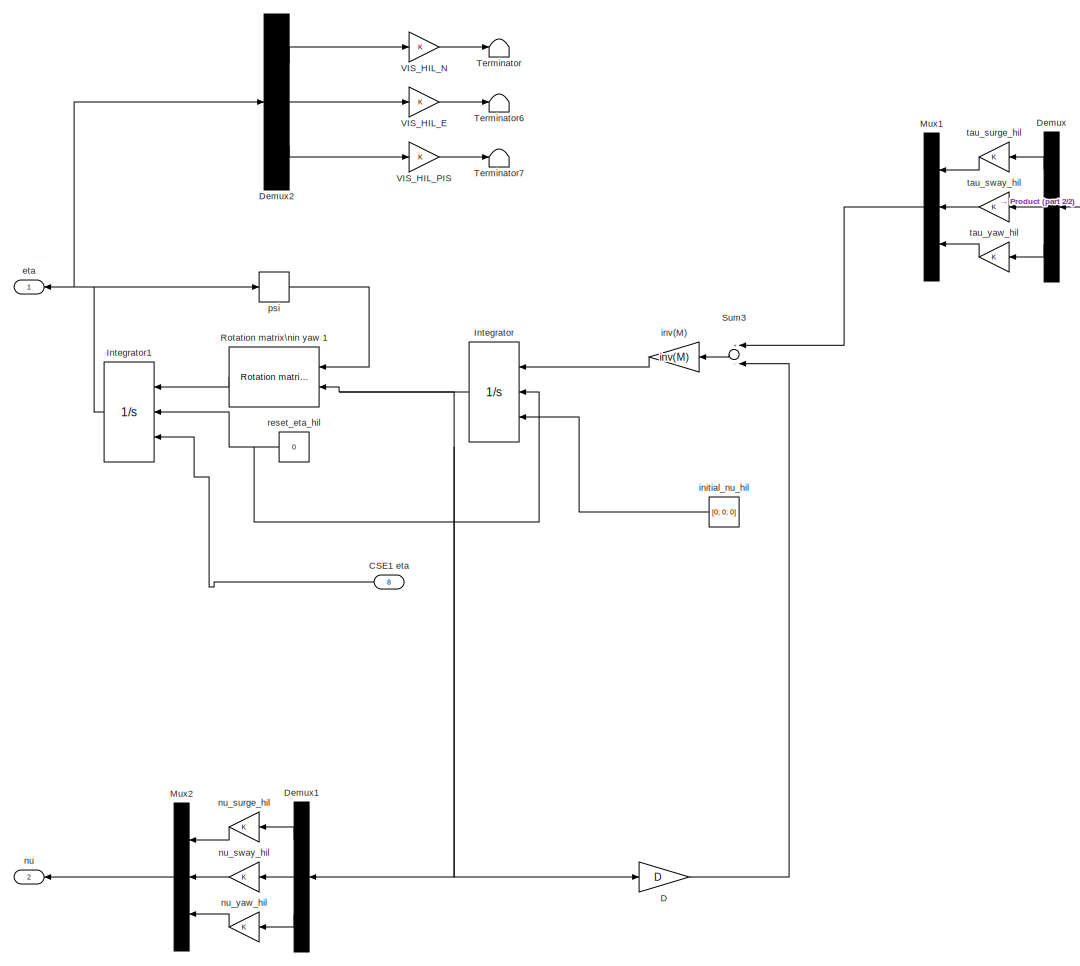
[diagram: HIL model - part 1/2, left side, full height]
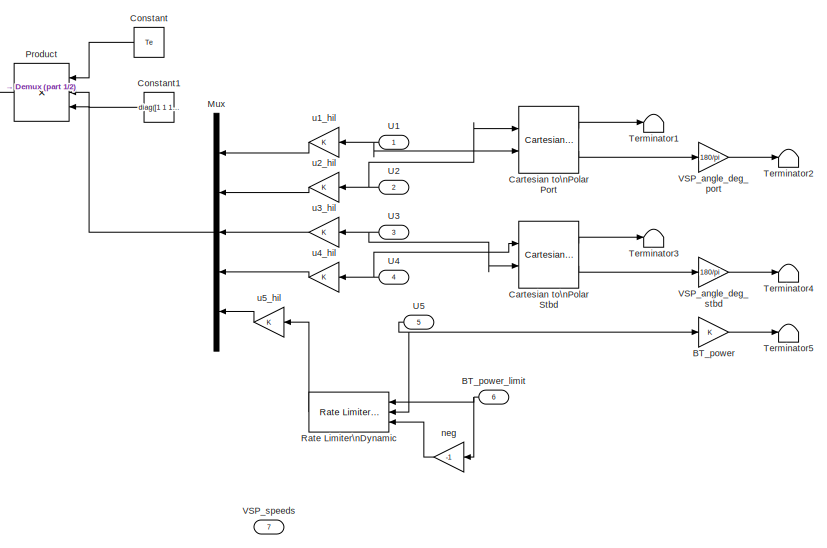
[diagram: HIL model - part 2/2, middle right region]
BLOCK [SubSystem] HIL model
  FunctionWithSeparateData = off
  MaskHideContents = off
  MinAlgLoopOccurrences = off
  Opaque = off
  Ports = [8, 2]
  PropExecContextOutsideSubsystem = off
  RTWSystemCode = Auto
  RequestExecContextInheritance = off
BLOCK [Gain] HIL model/BT_power
  OutDataType = fixdt(1, 16)
  OutDataTypeMode = Inherit via internal rule
  OutDataTypeStr = Inherit: Inherit via internal rule
  OutScaling = 2^0
  ParamDataTypeStr = Inherit: Inherit via internal rule
  ParameterDataType = fixdt(1, 16)
  ParameterDataTypeMode = Inherit via internal rule
  ParameterScaling = 2^0
  SaturateOnIntegerOverflow = off
BLOCK [Inport] HIL model/BT_power_limit
  IconDisplay = Port number
  OutDataType = fixdt(1, 16)
  OutScaling = 2^0
  Port = 6
BLOCK [Inport] HIL model/CSE1 eta
  IconDisplay = Port number
  OutDataType = fixdt(1, 16)
  OutScaling = 2^0
  Port = 8
BLOCK [Reference] HIL model/Cartesian to\nPolar Port  REF=simulink_extras/Transformations/Cartesian to\nPolar
  FunctionWithSeparateData = off
  Ports = [2, 2]
  RTWMemSecDataConstants = Inherit from model
  RTWMemSecDataInternal = Inherit from model
  RTWMemSecDataParameters = Inherit from model
  RTWMemSecFuncExecute = Inherit from model
  RTWMemSecFuncInitTerm = Inherit from model
  ShowPortLabels = FromPortIcon
  SourceBlock = simulink_extras/Transformations/Cartesian to\nPolar
  SourceType = Cart2Polar
  SystemSampleTime = -1
BLOCK [Reference] HIL model/Cartesian to\nPolar Stbd  REF=simulink_extras/Transformations/Cartesian to\nPolar
  FunctionWithSeparateData = off
  Ports = [2, 2]
  RTWMemSecDataConstants = Inherit from model
  RTWMemSecDataInternal = Inherit from model
  RTWMemSecDataParameters = Inherit from model
  RTWMemSecFuncExecute = Inherit from model
  RTWMemSecFuncInitTerm = Inherit from model
  ShowPortLabels = FromPortIcon
  SourceBlock = simulink_extras/Transformations/Cartesian to\nPolar
  SourceType = Cart2Polar
  SystemSampleTime = -1
BLOCK [Constant] HIL model/Constant
  Value = Te
BLOCK [Constant] HIL model/Constant1
  Value = diag([1 1 1 1 1])
BLOCK [Gain] HIL model/D
  Gain = D
  Multiplication = Matrix(K*u)
  OutDataType = sfix(16)
  OutScaling = 2^0
  ParameterDataType = sfix(16)
  ParameterScaling = 2^0
BLOCK [Demux] HIL model/Demux
  DisplayOption = bar
  Outputs = 3
  Ports = [1, 3]
BLOCK [Demux] HIL model/Demux1
  DisplayOption = bar
  Outputs = 3
  Ports = [1, 3]
BLOCK [Demux] HIL model/Demux2
  Outputs = 3
  Ports = [1, 3]
BLOCK [Integrator] HIL model/Integrator
  ExternalReset = level
  InitialConditionSource = external
  Ports = [3, 1]
BLOCK [Integrator] HIL model/Integrator1
  ExternalReset = level
  InitialConditionSource = external
  Ports = [3, 1]
BLOCK [Mux] HIL model/Mux
  DisplayOption = bar
  Inputs = 5
  Ports = [5, 1]
BLOCK [Mux] HIL model/Mux1
  DisplayOption = bar
  Inputs = 3
  Ports = [3, 1]
BLOCK [Mux] HIL model/Mux2
  DisplayOption = bar
  Inputs = 3
  Ports = [3, 1]
BLOCK [Product] HIL model/Product
  InputSameDT = off
  Inputs = 3
  Multiplication = Matrix(*)
  OutDataTypeMode = Inherit via internal rule
  OutDataTypeStr = Inherit: Inherit via internal rule
  Ports = [3, 1]
  SaturateOnIntegerOverflow = off
BLOCK [Reference] HIL model/Rate Limiter\nDynamic  REF=simulink/Discontinuities/Rate Limiter\nDynamic
  FunctionWithSeparateData = off
  Ports = [3, 1]
  RTWMemSecDataConstants = Inherit from model
  RTWMemSecDataInternal = Inherit from model
  RTWMemSecDataParameters = Inherit from model
  RTWMemSecFuncExecute = Inherit from model
  RTWMemSecFuncInitTerm = Inherit from model
  ShowPortLabels = FromPortIcon
  SourceBlock = simulink/Discontinuities/Rate Limiter\nDynamic
  SourceType = Rate Limiter Dynamic
  SystemSampleTime = -1
BLOCK [Reference] HIL model/Rotation matrix\nin yaw 1  REF=marine_gnc/Models/ Kinematics/Rotation matrix\nin yaw   (lib defined in mdl_10d96c221ba8, mdl_45f1105420c6)
  FunctionWithSeparateData = off
  Ports = [2, 1]
  RTWMemSecDataConstants = Inherit from model
  RTWMemSecDataInternal = Inherit from model
  RTWMemSecDataParameters = Inherit from model
  RTWMemSecFuncExecute = Inherit from model
  RTWMemSecFuncInitTerm = Inherit from model
  ShowPortLabels = FromPortIcon
  SourceBlock = marine_gnc/Models/ Kinematics/Rotation matrix\nin yaw
  SystemSampleTime = -1
BLOCK [Sum] HIL model/Sum3
  Inputs = +-
  OutDataType = sfix(16)
  OutScaling = 2^0
  Ports = [2, 1]
BLOCK [Terminator] HIL model/Terminator
BLOCK [Terminator] HIL model/Terminator1
BLOCK [Terminator] HIL model/Terminator2
BLOCK [Terminator] HIL model/Terminator3
BLOCK [Terminator] HIL model/Terminator4
BLOCK [Terminator] HIL model/Terminator5
BLOCK [Terminator] HIL model/Terminator6
BLOCK [Terminator] HIL model/Terminator7
BLOCK [Inport] HIL model/U1
  IconDisplay = Port number
  OutDataType = fixdt(1, 16)
  OutScaling = 2^0
BLOCK [Inport] HIL model/U2
  IconDisplay = Port number
  OutDataType = fixdt(1, 16)
  OutScaling = 2^0
  Port = 2
BLOCK [Inport] HIL model/U3
  IconDisplay = Port number
  OutDataType = fixdt(1, 16)
  OutScaling = 2^0
  Port = 3
BLOCK [Inport] HIL model/U4
  IconDisplay = Port number
  OutDataType = fixdt(1, 16)
  OutScaling = 2^0
  Port = 4
BLOCK [Inport] HIL model/U5
  IconDisplay = Port number
  OutDataType = fixdt(1, 16)
  OutScaling = 2^0
  Port = 5
BLOCK [Gain] HIL model/VIS_HIL_E
  OutDataType = fixdt(1, 16)
  OutDataTypeMode = Inherit via internal rule
  OutDataTypeStr = Inherit: Inherit via internal rule
  OutScaling = 2^0
  ParamDataTypeStr = Inherit: Inherit via internal rule
  ParameterDataType = fixdt(1, 16)
  ParameterDataTypeMode = Inherit via internal rule
  ParameterScaling = 2^0
  SaturateOnIntegerOverflow = off
BLOCK [Gain] HIL model/VIS_HIL_N
  OutDataType = fixdt(1, 16)
  OutDataTypeMode = Inherit via internal rule
  OutDataTypeStr = Inherit: Inherit via internal rule
  OutScaling = 2^0
  ParamDataTypeStr = Inherit: Inherit via internal rule
  ParameterDataType = fixdt(1, 16)
  ParameterDataTypeMode = Inherit via internal rule
  ParameterScaling = 2^0
  SaturateOnIntegerOverflow = off
BLOCK [Gain] HIL model/VIS_HIL_PIS
  OutDataType = fixdt(1, 16)
  OutDataTypeMode = Inherit via internal rule
  OutDataTypeStr = Inherit: Inherit via internal rule
  OutScaling = 2^0
  ParamDataTypeStr = Inherit: Inherit via internal rule
  ParameterDataType = fixdt(1, 16)
  ParameterDataTypeMode = Inherit via internal rule
  ParameterScaling = 2^0
  SaturateOnIntegerOverflow = off
BLOCK [Gain] HIL model/VSP_angle_deg_port
  Gain = 180/pi
  OutDataType = fixdt(1, 16)
  OutDataTypeMode = Inherit via internal rule
  OutDataTypeStr = Inherit: Inherit via internal rule
  OutScaling = 2^0
  ParamDataTypeStr = Inherit: Inherit via internal rule
  ParameterDataType = fixdt(1, 16)
  ParameterDataTypeMode = Inherit via internal rule
  ParameterScaling = 2^0
  SaturateOnIntegerOverflow = off
BLOCK [Gain] HIL model/VSP_angle_deg_stbd
  Gain = 180/pi
  OutDataType = fixdt(1, 16)
  OutDataTypeMode = Inherit via internal rule
  OutDataTypeStr = Inherit: Inherit via internal rule
  OutScaling = 2^0
  ParamDataTypeStr = Inherit: Inherit via internal rule
  ParameterDataType = fixdt(1, 16)
  ParameterDataTypeMode = Inherit via internal rule
  ParameterScaling = 2^0
  SaturateOnIntegerOverflow = off
BLOCK [Inport] HIL model/VSP_speeds
  IconDisplay = Port number
  OutDataType = fixdt(1, 16)
  OutScaling = 2^0
  Port = 7
BLOCK [Outport] HIL model/eta
  IconDisplay = Port number
  OutDataType = sfix(16)
  OutScaling = 2^0
BLOCK [Constant] HIL model/initial_nu_hil
  OutDataType = fixdt(1, 16)
  OutScaling = 2^0
  Value = [0; 0; 0]
BLOCK [Gain] HIL model/inv(M)
  Gain = inv(M)
  Multiplication = Matrix(K*u)
  OutDataType = sfix(16)
  OutScaling = 2^0
  ParameterDataType = sfix(16)
  ParameterScaling = 2^0
BLOCK [Gain] HIL model/neg
  Gain = -1
  OutDataType = fixdt(1, 16)
  OutDataTypeMode = Inherit via internal rule
  OutDataTypeStr = Inherit: Inherit via internal rule
  OutScaling = 2^0
  ParamDataTypeStr = Inherit: Inherit via internal rule
  ParameterDataType = fixdt(1, 16)
  ParameterDataTypeMode = Inherit via internal rule
  ParameterScaling = 2^0
  SaturateOnIntegerOverflow = off
BLOCK [Outport] HIL model/nu
  IconDisplay = Port number
  OutDataType = sfix(16)
  OutScaling = 2^0
  Port = 2
BLOCK [Gain] HIL model/nu_surge_hil
  OutDataType = fixdt(1, 16)
  OutDataTypeMode = Inherit via internal rule
  OutDataTypeStr = Inherit: Inherit via internal rule
  OutScaling = 2^0
  ParamDataTypeStr = Inherit: Inherit via internal rule
  ParameterDataType = fixdt(1, 16)
  ParameterDataTypeMode = Inherit via internal rule
  ParameterScaling = 2^0
  SaturateOnIntegerOverflow = off
BLOCK [Gain] HIL model/nu_sway_hil
  OutDataType = fixdt(1, 16)
  OutDataTypeMode = Inherit via internal rule
  OutDataTypeStr = Inherit: Inherit via internal rule
  OutScaling = 2^0
  ParamDataTypeStr = Inherit: Inherit via internal rule
  ParameterDataType = fixdt(1, 16)
  ParameterDataTypeMode = Inherit via internal rule
  ParameterScaling = 2^0
  SaturateOnIntegerOverflow = off
BLOCK [Gain] HIL model/nu_yaw_hil
  OutDataType = fixdt(1, 16)
  OutDataTypeMode = Inherit via internal rule
  OutDataTypeStr = Inherit: Inherit via internal rule
  OutScaling = 2^0
  ParamDataTypeStr = Inherit: Inherit via internal rule
  ParameterDataType = fixdt(1, 16)
  ParameterDataTypeMode = Inherit via internal rule
  ParameterScaling = 2^0
  SaturateOnIntegerOverflow = off
BLOCK [Selector] HIL model/psi
  IndexOptions = Index vector (dialog)
  Indices = [3]
  InputPortWidth = 3
  OutputSizes = 1
  Ports = [1, 1]
BLOCK [Constant] HIL model/reset_eta_hil
  OutDataType = fixdt(1, 16)
  OutScaling = 2^0
  Value = 0
BLOCK [Gain] HIL model/tau_surge_hil
  OutDataType = fixdt(1, 16)
  OutDataTypeMode = Inherit via internal rule
  OutDataTypeStr = Inherit: Inherit via internal rule
  OutScaling = 2^0
  ParamDataTypeStr = Inherit: Inherit via internal rule
  ParameterDataType = fixdt(1, 16)
  ParameterDataTypeMode = Inherit via internal rule
  ParameterScaling = 2^0
  SaturateOnIntegerOverflow = off
BLOCK [Gain] HIL model/tau_sway_hil
  OutDataType = fixdt(1, 16)
  OutDataTypeMode = Inherit via internal rule
  OutDataTypeStr = Inherit: Inherit via internal rule
  OutScaling = 2^0
  ParamDataTypeStr = Inherit: Inherit via internal rule
  ParameterDataType = fixdt(1, 16)
  ParameterDataTypeMode = Inherit via internal rule
  ParameterScaling = 2^0
  SaturateOnIntegerOverflow = off
BLOCK [Gain] HIL model/tau_yaw_hil
  OutDataType = fixdt(1, 16)
  OutDataTypeMode = Inherit via internal rule
  OutDataTypeStr = Inherit: Inherit via internal rule
  OutScaling = 2^0
  ParamDataTypeStr = Inherit: Inherit via internal rule
  ParameterDataType = fixdt(1, 16)
  ParameterDataTypeMode = Inherit via internal rule
  ParameterScaling = 2^0
  SaturateOnIntegerOverflow = off
BLOCK [Gain] HIL model/u1_hil
  OutDataType = fixdt(1, 16)
  OutDataTypeMode = Inherit via internal rule
  OutDataTypeStr = Inherit: Inherit via internal rule
  OutScaling = 2^0
  ParamDataTypeStr = Inherit: Inherit via internal rule
  ParameterDataType = fixdt(1, 16)
  ParameterDataTypeMode = Inherit via internal rule
  ParameterScaling = 2^0
  SaturateOnIntegerOverflow = off
BLOCK [Gain] HIL model/u2_hil
  OutDataType = fixdt(1, 16)
  OutDataTypeMode = Inherit via internal rule
  OutDataTypeStr = Inherit: Inherit via internal rule
  OutScaling = 2^0
  ParamDataTypeStr = Inherit: Inherit via internal rule
  ParameterDataType = fixdt(1, 16)
  ParameterDataTypeMode = Inherit via internal rule
  ParameterScaling = 2^0
  SaturateOnIntegerOverflow = off
BLOCK [Gain] HIL model/u3_hil
  OutDataType = fixdt(1, 16)
  OutDataTypeMode = Inherit via internal rule
  OutDataTypeStr = Inherit: Inherit via internal rule
  OutScaling = 2^0
  ParamDataTypeStr = Inherit: Inherit via internal rule
  ParameterDataType = fixdt(1, 16)
  ParameterDataTypeMode = Inherit via internal rule
  ParameterScaling = 2^0
  SaturateOnIntegerOverflow = off
BLOCK [Gain] HIL model/u4_hil
  OutDataType = fixdt(1, 16)
  OutDataTypeMode = Inherit via internal rule
  OutDataTypeStr = Inherit: Inherit via internal rule
  OutScaling = 2^0
  ParamDataTypeStr = Inherit: Inherit via internal rule
  ParameterDataType = fixdt(1, 16)
  ParameterDataTypeMode = Inherit via internal rule
  ParameterScaling = 2^0
  SaturateOnIntegerOverflow = off
BLOCK [Gain] HIL model/u5_hil
  OutDataType = fixdt(1, 16)
  OutDataTypeMode = Inherit via internal rule
  OutDataTypeStr = Inherit: Inherit via internal rule
  OutScaling = 2^0
  ParamDataTypeStr = Inherit: Inherit via internal rule
  ParameterDataType = fixdt(1, 16)
  ParameterDataTypeMode = Inherit via internal rule
  ParameterScaling = 2^0
  SaturateOnIntegerOverflow = off
BLOCK [SubSystem] Joystick Control
  FunctionWithSeparateData = off
  MaskHideContents = off
  MinAlgLoopOccurrences = off
  Opaque = off
  Ports = [1, 1]
  PropExecContextOutsideSubsystem = off
  RTWSystemCode = Auto
  RequestExecContextInheritance = off
BLOCK [Constant] Joystick Control/BT_power_limit
  OutDataType = fixdt(1, 16)
  OutScaling = 2^0
  Value = 0.5
BLOCK [Demux] Joystick Control/Demux1
  Outputs = 6
  Ports = [1, 6]
BLOCK [Constant] Joystick Control/Ke^-1
  OutDataType = fixdt(1, 16)
  OutScaling = 2^0
  Value = inv(Ke)
BLOCK [Mux] Joystick Control/Mux
  DisplayOption = bar
  Inputs = 3
  Ports = [3, 1]
BLOCK [Mux] Joystick Control/Mux1
  DisplayOption = bar
  Inputs = 3
  Ports = [3, 1]
BLOCK [Outport] Joystick Control/Out1
  IconDisplay = Port number
  OutDataType = fixdt(1, 16)
  OutScaling = 2^0
BLOCK [Inport] Joystick Control/PS3
  IconDisplay = Port number
  OutDataType = fixdt(1, 16)
  OutScaling = 2^0
BLOCK [Product] Joystick Control/Product
  InputSameDT = off
  Multiplication = Matrix(*)
  OutDataType = fixdt(1, 16)
  OutDataTypeMode = Inherit via internal rule
  OutDataTypeStr = Inherit: Inherit via internal rule
  OutScaling = 2^0
  Ports = [2, 1]
  SaturateOnIntegerOverflow = off
BLOCK [Product] Joystick Control/Product1
  InputSameDT = off
  Multiplication = Matrix(*)
  OutDataType = fixdt(1, 16)
  OutDataTypeMode = Inherit via internal rule
  OutDataTypeStr = Inherit: Inherit via internal rule
  OutScaling = 2^0
  Ports = [2, 1]
  SaturateOnIntegerOverflow = off
BLOCK [Saturate] Joystick Control/Saturation
  LowerLimit = -1.0
  OutDataType = fixdt(1, 16)
  OutScaling = 2^0
  UpperLimit = 1.0
BLOCK [Sum] Joystick Control/Sum
  InputSameDT = off
  OutDataType = fixdt(1, 16)
  OutDataTypeMode = Inherit via internal rule
  OutDataTypeStr = Inherit: Inherit via internal rule
  OutScaling = 2^0
  Ports = [2, 1]
  SaturateOnIntegerOverflow = off
BLOCK [Constant] Joystick Control/Te^+
  OutDataType = fixdt(1, 16)
  OutScaling = 2^0
  Value = pinv(Te)
BLOCK [Constant] Joystick Control/VSP_speeds
  OutDataType = fixdt(1, 16)
  OutScaling = 2^0
  Value = 0.4
BLOCK [Gain] Joystick Control/joystick_gain_surge
  OutDataType = fixdt(1, 16)
  OutDataTypeMode = Inherit via internal rule
  OutDataTypeStr = Inherit: Inherit via internal rule
  OutScaling = 2^0
  ParamDataTypeStr = Inherit: Inherit via internal rule
  ParameterDataType = fixdt(1, 16)
  ParameterDataTypeMode = Inherit via internal rule
  ParameterScaling = 2^0
  SaturateOnIntegerOverflow = off
BLOCK [Gain] Joystick Control/joystick_gain_sway
  OutDataType = fixdt(1, 16)
  OutDataTypeMode = Inherit via internal rule
  OutDataTypeStr = Inherit: Inherit via internal rule
  OutScaling = 2^0
  ParamDataTypeStr = Inherit: Inherit via internal rule
  ParameterDataType = fixdt(1, 16)
  ParameterDataTypeMode = Inherit via internal rule
  ParameterScaling = 2^0
  SaturateOnIntegerOverflow = off
BLOCK [Gain] Joystick Control/joystick_gain_yaw
  OutDataType = fixdt(1, 16)
  OutDataTypeMode = Inherit via internal rule
  OutDataTypeStr = Inherit: Inherit via internal rule
  OutScaling = 2^0
  ParamDataTypeStr = Inherit: Inherit via internal rule
  ParameterDataType = fixdt(1, 16)
  ParameterDataTypeMode = Inherit via internal rule
  ParameterScaling = 2^0
  SaturateOnIntegerOverflow = off
BLOCK [SubSystem] LabView Out
  FunctionWithSeparateData = off
  MaskHideContents = off
  MinAlgLoopOccurrences = off
  Opaque = off
  Ports = [0, 3]
  PropExecContextOutsideSubsystem = off
  RTWSystemCode = Auto
  RequestExecContextInheritance = off
BLOCK [Constant] LabView Out/BT_saturation
  OutDataType = fixdt(1, 16)
  OutScaling = 2^0
  Value = 0
BLOCK [Outport] LabView Out/BT_saturation_out
  IconDisplay = Port number
  OutDataType = fixdt(1, 16)
  OutScaling = 2^0
  Port = 2
BLOCK [Demux] LabView Out/Demux
  DisplayOption = bar
  Outputs = 3
  Ports = [1, 3]
BLOCK [Constant] LabView Out/Enable eta_d LPF
  OutDataType = fixdt(1, 16)
  OutScaling = 2^0
  Value = 0
BLOCK [MultiPortSwitch] LabView Out/Multiport\nSwitch
  InputSameDT = off
  Inputs = 2
  OutDataType = fixdt(1, 16)
  OutScaling = 2^0
  Ports = [3, 1]
  SaturateOnIntegerOverflow = off
  zeroidx = on
BLOCK [Mux] LabView Out/Mux
  DisplayOption = bar
  Inputs = 3
  Ports = [3, 1]
BLOCK [Mux] LabView Out/Mux1
  DisplayOption = bar
  Inputs = 3
  Ports = [3, 1]
BLOCK [TransferFcn] LabView Out/Transfer Fcn
  Denominator = [1 0.1]
  Numerator = [0.1]
BLOCK [TransferFcn] LabView Out/Transfer Fcn1
  Denominator = [1 0.1]
  Numerator = [0.1]
BLOCK [TransferFcn] LabView Out/Transfer Fcn2
  Denominator = [1 0.1]
  Numerator = [0.1]
BLOCK [Constant] LabView Out/VSP_speeds
  OutDataType = fixdt(1, 16)
  OutScaling = 2^0
  Value = 0
BLOCK [Outport] LabView Out/VSP_speeds_out
  IconDisplay = Port number
  OutDataType = fixdt(1, 16)
  OutScaling = 2^0
BLOCK [Outport] LabView Out/eta_d
  IconDisplay = Port number
  OutDataType = fixdt(1, 16)
  OutScaling = 2^0
  Port = 3
BLOCK [Constant] LabView Out/eta_d_E
  OutDataType = fixdt(1, 16)
  OutScaling = 2^0
  Value = 0
BLOCK [Constant] LabView Out/eta_d_N
  OutDataType = fixdt(1, 16)
  OutScaling = 2^0
  Value = 0
BLOCK [Constant] LabView Out/eta_d_Psi
  OutDataType = fixdt(1, 16)
  OutScaling = 2^0
  Value = 0
BLOCK [Constant] MODE
  OutDataType = fixdt(1, 16)
  OutScaling = 2^0
  Value = 0
BLOCK [SubSystem] Manual Thruster Control
  FunctionWithSeparateData = off
  MaskHideContents = off
  MinAlgLoopOccurrences = off
  Opaque = off
  Ports = [3, 1]
  PropExecContextOutsideSubsystem = off
  RTWSystemCode = Auto
  RequestExecContextInheritance = off
BLOCK [Inport] Manual Thruster Control/BT_saturation
  IconDisplay = Port number
  OutDataType = fixdt(1, 16)
  OutScaling = 2^0
  Port = 3
BLOCK [Demux] Manual Thruster Control/Demux1
  Outputs = 6
  Ports = [1, 6]
BLOCK [Mux] Manual Thruster Control/Mux
  Inputs = 7
  Ports = [7, 1]
BLOCK [Outport] Manual Thruster Control/Out1
  IconDisplay = Port number
  OutDataType = fixdt(1, 16)
  OutScaling = 2^0
BLOCK [Inport] Manual Thruster Control/PS3
  IconDisplay = Port number
  OutDataType = fixdt(1, 16)
  OutScaling = 2^0
BLOCK [Sum] Manual Thruster Control/Sum
  InputSameDT = off
  OutDataType = fixdt(1, 16)
  OutDataTypeMode = Inherit via internal rule
  OutDataTypeStr = Inherit: Inherit via internal rule
  OutScaling = 2^0
  Ports = [2, 1]
  SaturateOnIntegerOverflow = off
BLOCK [Gain] Manual Thruster Control/U1
  OutDataType = fixdt(1, 16)
  OutDataTypeMode = Inherit via internal rule
  OutDataTypeStr = Inherit: Inherit via internal rule
  OutScaling = 2^0
  ParamDataTypeStr = Inherit: Inherit via internal rule
  ParameterDataType = fixdt(1, 16)
  ParameterDataTypeMode = Inherit via internal rule
  ParameterScaling = 2^0
  SaturateOnIntegerOverflow = off
BLOCK [Gain] Manual Thruster Control/U2
  OutDataType = fixdt(1, 16)
  OutDataTypeMode = Inherit via internal rule
  OutDataTypeStr = Inherit: Inherit via internal rule
  OutScaling = 2^0
  ParamDataTypeStr = Inherit: Inherit via internal rule
  ParameterDataType = fixdt(1, 16)
  ParameterDataTypeMode = Inherit via internal rule
  ParameterScaling = 2^0
  SaturateOnIntegerOverflow = off
BLOCK [Gain] Manual Thruster Control/U3
  OutDataType = fixdt(1, 16)
  OutDataTypeMode = Inherit via internal rule
  OutDataTypeStr = Inherit: Inherit via internal rule
  OutScaling = 2^0
  ParamDataTypeStr = Inherit: Inherit via internal rule
  ParameterDataType = fixdt(1, 16)
  ParameterDataTypeMode = Inherit via internal rule
  ParameterScaling = 2^0
  SaturateOnIntegerOverflow = off
BLOCK [Gain] Manual Thruster Control/U4
  OutDataType = fixdt(1, 16)
  OutDataTypeMode = Inherit via internal rule
  OutDataTypeStr = Inherit: Inherit via internal rule
  OutScaling = 2^0
  ParamDataTypeStr = Inherit: Inherit via internal rule
  ParameterDataType = fixdt(1, 16)
  ParameterDataTypeMode = Inherit via internal rule
  ParameterScaling = 2^0
  SaturateOnIntegerOverflow = off
BLOCK [Gain] Manual Thruster Control/U5
  OutDataType = fixdt(1, 16)
  OutDataTypeMode = Inherit via internal rule
  OutDataTypeStr = Inherit: Inherit via internal rule
  OutScaling = 2^0
  ParamDataTypeStr = Inherit: Inherit via internal rule
  ParameterDataType = fixdt(1, 16)
  ParameterDataTypeMode = Inherit via internal rule
  ParameterScaling = 2^0
  SaturateOnIntegerOverflow = off
BLOCK [Inport] Manual Thruster Control/VSP_speeds
  IconDisplay = Port number
  OutDataType = fixdt(1, 16)
  OutScaling = 2^0
  Port = 2
BLOCK [MultiPortSwitch] Multiport\nSwitch1
  InputSameDT = off
  Inputs = 2
  OutDataType = fixdt(1, 16)
  OutScaling = 2^0
  Ports = [3, 1]
  SaturateOnIntegerOverflow = off
  zeroidx = on
BLOCK [MultiPortSwitch] Multiport\nSwitch2
  InputSameDT = off
  OutDataType = fixdt(1, 16)
  OutScaling = 2^0
  Ports = [4, 1]
  SaturateOnIntegerOverflow = off
  zeroidx = on
BLOCK [MultiPortSwitch] Multiport\nSwitch3
  InputSameDT = off
  Inputs = 2
  OutDataType = fixdt(1, 16)
  OutScaling = 2^0
  Ports = [3, 1]
  SaturateOnIntegerOverflow = off
  zeroidx = on
BLOCK [Mux] Mux
  Inputs = 6
  Ports = [6, 1]
BLOCK [Mux] Mux1
  DisplayOption = bar
  Ports = [4, 1]
BLOCK [SubSystem] PS3 Sixaxis
  FunctionWithSeparateData = off
  MaskHideContents = off
  MinAlgLoopOccurrences = off
  Opaque = off
  Ports = [0, 6]
  PropExecContextOutsideSubsystem = off
  RTWSystemCode = Auto
  RequestExecContextInheritance = off
BLOCK [Constant] PS3 Sixaxis/Constant
  OutDataType = fixdt(1, 16)
  OutScaling = 2^0
  Value = -179
BLOCK [Constant] PS3 Sixaxis/Constant1
  OutDataType = fixdt(1, 16)
  OutScaling = 2^0
  Value = -179
BLOCK [Gain] PS3 Sixaxis/Gain
  Gain = 1/32676
  OutDataType = fixdt(1, 16)
  OutDataTypeMode = Inherit via internal rule
  OutDataTypeStr = Inherit: Inherit via internal rule
  OutScaling = 2^0
  ParamDataTypeStr = Inherit: Inherit via internal rule
  ParameterDataType = fixdt(1, 16)
  ParameterDataTypeMode = Inherit via internal rule
  ParameterScaling = 2^0
  SaturateOnIntegerOverflow = off
BLOCK [Gain] PS3 Sixaxis/Gain1
  Gain = 1/32676
  OutDataType = fixdt(1, 16)
  OutDataTypeMode = Inherit via internal rule
  OutDataTypeStr = Inherit: Inherit via internal rule
  OutScaling = 2^0
  ParamDataTypeStr = Inherit: Inherit via internal rule
  ParameterDataType = fixdt(1, 16)
  ParameterDataTypeMode = Inherit via internal rule
  ParameterScaling = 2^0
  SaturateOnIntegerOverflow = off
BLOCK [Gain] PS3 Sixaxis/Gain2
  Gain = 1/32676
  OutDataType = fixdt(1, 16)
  OutDataTypeMode = Inherit via internal rule
  OutDataTypeStr = Inherit: Inherit via internal rule
  OutScaling = 2^0
  ParamDataTypeStr = Inherit: Inherit via internal rule
  ParameterDataType = fixdt(1, 16)
  ParameterDataTypeMode = Inherit via internal rule
  ParameterScaling = 2^0
  SaturateOnIntegerOverflow = off
BLOCK [Gain] PS3 Sixaxis/Gain3
  Gain = 1/32676
  OutDataType = fixdt(1, 16)
  OutDataTypeMode = Inherit via internal rule
  OutDataTypeStr = Inherit: Inherit via internal rule
  OutScaling = 2^0
  ParamDataTypeStr = Inherit: Inherit via internal rule
  ParameterDataType = fixdt(1, 16)
  ParameterDataTypeMode = Inherit via internal rule
  ParameterScaling = 2^0
  SaturateOnIntegerOverflow = off
BLOCK [Constant] PS3 Sixaxis/PS3_L2
  OutDataType = fixdt(1, 16)
  OutScaling = 2^0
  Value = 100
BLOCK [Outport] PS3 Sixaxis/PS3_L2_out
  IconDisplay = Port number
  OutDataType = fixdt(1, 16)
  OutScaling = 2^0
  Port = 5
BLOCK [Constant] PS3 Sixaxis/PS3_L_JS_X
  OutDataType = fixdt(1, 16)
  OutScaling = 2^0
  Value = 0
BLOCK [Outport] PS3 Sixaxis/PS3_L_JS_X_out
  IconDisplay = Port number
  OutDataType = fixdt(1, 16)
  OutScaling = 2^0
BLOCK [Constant] PS3 Sixaxis/PS3_L_JS_Y
  OutDataType = fixdt(1, 16)
  OutScaling = 2^0
  Value = 0
BLOCK [Outport] PS3 Sixaxis/PS3_L_JS_Y_out
  IconDisplay = Port number
  OutDataType = fixdt(1, 16)
  OutScaling = 2^0
  Port = 2
BLOCK [Constant] PS3 Sixaxis/PS3_R2
  OutDataType = fixdt(1, 16)
  OutScaling = 2^0
  Value = 100
BLOCK [Outport] PS3 Sixaxis/PS3_R2_out
  IconDisplay = Port number
  OutDataType = fixdt(1, 16)
  OutScaling = 2^0
  Port = 6
BLOCK [Constant] PS3 Sixaxis/PS3_R_JS_X
  OutDataType = fixdt(1, 16)
  OutScaling = 2^0
  Value = 0
BLOCK [Outport] PS3 Sixaxis/PS3_R_JS_X_out
  IconDisplay = Port number
  OutDataType = fixdt(1, 16)
  OutScaling = 2^0
  Port = 3
BLOCK [Constant] PS3 Sixaxis/PS3_R_JS_Y
  OutDataType = fixdt(1, 16)
  OutScaling = 2^0
  Value = 0
BLOCK [Outport] PS3 Sixaxis/PS3_R_JS_Y_out
  IconDisplay = Port number
  OutDataType = fixdt(1, 16)
  OutScaling = 2^0
  Port = 4
BLOCK [Sum] PS3 Sixaxis/Sum3
  IconShape = round
  InputSameDT = off
  Inputs = |++
  OutDataType = fixdt(1, 16)
  OutDataTypeMode = Inherit via internal rule
  OutDataTypeStr = Inherit: Inherit via internal rule
  OutScaling = 2^0
  Ports = [2, 1]
  SaturateOnIntegerOverflow = off
BLOCK [Sum] PS3 Sixaxis/Sum4
  IconShape = round
  InputSameDT = off
  Inputs = |++
  OutDataType = fixdt(1, 16)
  OutDataTypeMode = Inherit via internal rule
  OutDataTypeStr = Inherit: Inherit via internal rule
  OutScaling = 2^0
  Ports = [2, 1]
  SaturateOnIntegerOverflow = off
BLOCK [Gain] PS3 Sixaxis/g4
  Gain = 1/179
  OutDataType = fixdt(1, 16)
  OutDataTypeMode = Inherit via internal rule
  OutDataTypeStr = Inherit: Inherit via internal rule
  OutScaling = 2^0
  ParamDataTypeStr = Inherit: Inherit via internal rule
  ParameterDataType = fixdt(1, 16)
  ParameterDataTypeMode = Inherit via internal rule
  ParameterScaling = 2^0
  SaturateOnIntegerOverflow = off
BLOCK [Gain] PS3 Sixaxis/g5
  Gain = -1/179
  OutDataType = fixdt(1, 16)
  OutDataTypeMode = Inherit via internal rule
  OutDataTypeStr = Inherit: Inherit via internal rule
  OutScaling = 2^0
  ParamDataTypeStr = Inherit: Inherit via internal rule
  ParameterDataType = fixdt(1, 16)
  ParameterDataTypeMode = Inherit via internal rule
  ParameterScaling = 2^0
  SaturateOnIntegerOverflow = off
BLOCK [SubSystem] Qualinsys 6 DOF Out
  FunctionWithSeparateData = off
  MaskHideContents = off
  MinAlgLoopOccurrences = off
  Opaque = off
  Ports = [0, 4]
  PropExecContextOutsideSubsystem = off
  RTWSystemCode = Auto
  RequestExecContextInheritance = off
BLOCK [Constant] Qualinsys 6 DOF Out/Constant1
  OutDataType = fixdt(1, 16)
  OutScaling = 2^0
  Value = zeros(3)
BLOCK [Demux] Qualinsys 6 DOF Out/Demux
  DisplayOption = bar
  Outputs = 3
  Ports = [1, 3]
BLOCK [Demux] Qualinsys 6 DOF Out/Demux1
  DisplayOption = bar
  Outputs = 3
  Ports = [1, 3]
BLOCK [Derivative] Qualinsys 6 DOF Out/Derivative
BLOCK [Reference] Qualinsys 6 DOF Out/Euler angles to\ninverse rotation\nmatrix  REF=marine_gnc/Models/ Kinematics/Euler angles to\ninverse rotation\nmatrix  (lib defined in mdl_10d96c221ba8, mdl_45f1105420c6)
  FunctionWithSeparateData = off
  Ports = [1, 1]
  RTWMemSecDataConstants = Inherit from model
  RTWMemSecDataInternal = Inherit from model
  RTWMemSecDataParameters = Inherit from model
  RTWMemSecFuncExecute = Inherit from model
  RTWMemSecFuncInitTerm = Inherit from model
  ShowPortLabels = FromPortIcon
  SourceBlock = marine_gnc/Models/ Kinematics/Euler angles to\ninverse rotation\nmatrix
  SourceType = Rbn
  SystemSampleTime = -1
BLOCK [Concatenate] Qualinsys 6 DOF Out/Matrix\nConcatenate
  Mode = Multidimensional array
  Ports = [2, 1]
BLOCK [Concatenate] Qualinsys 6 DOF Out/Matrix\nConcatenate1
  Mode = Multidimensional array
  Ports = [2, 1]
BLOCK [Concatenate] Qualinsys 6 DOF Out/Matrix\nConcatenate2
  ConcatenateDimension = 2
  Mode = Multidimensional array
  Ports = [2, 1]
BLOCK [MultiPortSwitch] Qualinsys 6 DOF Out/Multiport\nSwitch
  InputSameDT = off
  OutDataType = fixdt(1, 16)
  OutScaling = 2^0
  Ports = [4, 1]
  SaturateOnIntegerOverflow = off
BLOCK [MultiPortSwitch] Qualinsys 6 DOF Out/Multiport\nSwitch1
  InputSameDT = off
  OutDataType = fixdt(1, 16)
  OutScaling = 2^0
  Ports = [4, 1]
  SaturateOnIntegerOverflow = off
BLOCK [Mux] Qualinsys 6 DOF Out/Mux
  DisplayOption = bar
  Inputs = 3
  Ports = [3, 1]
BLOCK [Mux] Qualinsys 6 DOF Out/Mux1
  DisplayOption = bar
  Inputs = 6
  Ports = [6, 1]
BLOCK [Mux] Qualinsys 6 DOF Out/Mux2
  DisplayOption = bar
  Inputs = 3
  Ports = [3, 1]
BLOCK [Mux] Qualinsys 6 DOF Out/Mux3
  DisplayOption = bar
  Inputs = 3
  Ports = [3, 1]
BLOCK [Product] Qualinsys 6 DOF Out/Product
  InputSameDT = off
  Multiplication = Matrix(*)
  OutDataType = fixdt(1, 16)
  OutDataTypeMode = Inherit via internal rule
  OutDataTypeStr = Inherit: Inherit via internal rule
  OutScaling = 2^0
  Ports = [2, 1]
  SaturateOnIntegerOverflow = off
BLOCK [S-Function] Qualinsys 6 DOF Out/SIT In1
  CopyFcn = NI_SIT_IO_callbacks(1);
  DeleteFcn = NI_SIT_IO_callbacks(2);
  EnableBusSupport = off
  FunctionName = NI_SIT_IO
  MaskCallbackString = NI_SIT_IO_callbacks(3);|||NI_SIT_IO_callbacks(4);||
  MaskDescription = Use this inport on any level of nested subsystems to allow the LabVIEW Simulation Interface Toolkit to map hardware to it.
  MaskDisplay = patch([-x x], [-y y], [.90980 .81960 .32156]);\nplot([0 -x x 0], [rad -y y rad]);\nfprintf('SIT%d', portnum);
  MaskEnableString = on,on,on,on,on,on
  MaskIconFrame = off
  MaskIconOpaque = on
  MaskIconRotate = none
  MaskIconUnits = autoscale
  MaskInitialization = NI_SIT_IO_init;
  MaskPortRotate = default
  MaskPromptString = Port number:|Port dimensions (-1 for dynamically sized):|Sample time (-1 for inherited):|Data type:|Signal type:|Block type:
  MaskStyleString = edit,edit,edit,popup(auto|double|single|int8|uint8|int16|uint16|int32|uint32|boolean),popup(auto|real|complex),edit
  MaskTabNameString = Parameters,Parameters,Parameters,Parameters,Parameters,Parameters
  MaskToolTipString = on,on,on,on,on,on
  MaskTunableValueString = off,off,off,off,off,off
  MaskType = SIT Inport
  MaskValueString = 1|-1|-1|auto|auto|1
  MaskVarAliasString = ,,,,,
  MaskVariables = portnum=@1;width=@2;stime=@3;dtype=@4;stype=@5;btype=@6;
  MaskVisibilityString = on,on,on,on,on,off
  Parameters = width dtype portnum stime stype btype
  Ports = [0, 1]
  Priority = 1
BLOCK [S-Function] Qualinsys 6 DOF Out/SIT In2
  CopyFcn = NI_SIT_IO_callbacks(1);
  DeleteFcn = NI_SIT_IO_callbacks(2);
  EnableBusSupport = off
  FunctionName = NI_SIT_IO
  MaskCallbackString = NI_SIT_IO_callbacks(3);|||NI_SIT_IO_callbacks(4);||
  MaskDescription = Use this inport on any level of nested subsystems to allow the LabVIEW Simulation Interface Toolkit to map hardware to it.
  MaskDisplay = patch([-x x], [-y y], [.90980 .81960 .32156]);\nplot([0 -x x 0], [rad -y y rad]);\nfprintf('SIT%d', portnum);
  MaskEnableString = on,on,on,on,on,on
  MaskIconFrame = off
  MaskIconOpaque = on
  MaskIconRotate = none
  MaskIconUnits = autoscale
  MaskInitialization = NI_SIT_IO_init;
  MaskPortRotate = default
  MaskPromptString = Port number:|Port dimensions (-1 for dynamically sized):|Sample time (-1 for inherited):|Data type:|Signal type:|Block type:
  MaskStyleString = edit,edit,edit,popup(auto|double|single|int8|uint8|int16|uint16|int32|uint32|boolean),popup(auto|real|complex),edit
  MaskTabNameString = Parameters,Parameters,Parameters,Parameters,Parameters,Parameters
  MaskToolTipString = on,on,on,on,on,on
  MaskTunableValueString = off,off,off,off,off,off
  MaskType = SIT Inport
  MaskValueString = 2|-1|-1|auto|auto|1
  MaskVarAliasString = ,,,,,
  MaskVariables = portnum=@1;width=@2;stime=@3;dtype=@4;stype=@5;btype=@6;
  MaskVisibilityString = on,on,on,on,on,off
  Parameters = width dtype portnum stime stype btype
  Ports = [0, 1]
  Priority = 2
BLOCK [S-Function] Qualinsys 6 DOF Out/SIT In3
  CopyFcn = NI_SIT_IO_callbacks(1);
  DeleteFcn = NI_SIT_IO_callbacks(2);
  EnableBusSupport = off
  FunctionName = NI_SIT_IO
  MaskCallbackString = NI_SIT_IO_callbacks(3);|||NI_SIT_IO_callbacks(4);||
  MaskDescription = Use this inport on any level of nested subsystems to allow the LabVIEW Simulation Interface Toolkit to map hardware to it.
  MaskDisplay = patch([-x x], [-y y], [.90980 .81960 .32156]);\nplot([0 -x x 0], [rad -y y rad]);\nfprintf('SIT%d', portnum);
  MaskEnableString = on,on,on,on,on,on
  MaskIconFrame = off
  MaskIconOpaque = on
  MaskIconRotate = none
  MaskIconUnits = autoscale
  MaskInitialization = NI_SIT_IO_init;
  MaskPortRotate = default
  MaskPromptString = Port number:|Port dimensions (-1 for dynamically sized):|Sample time (-1 for inherited):|Data type:|Signal type:|Block type:
  MaskStyleString = edit,edit,edit,popup(auto|double|single|int8|uint8|int16|uint16|int32|uint32|boolean),popup(auto|real|complex),edit
  MaskTabNameString = Parameters,Parameters,Parameters,Parameters,Parameters,Parameters
  MaskToolTipString = on,on,on,on,on,on
  MaskTunableValueString = off,off,off,off,off,off
  MaskType = SIT Inport
  MaskValueString = 3|-1|-1|auto|auto|1
  MaskVarAliasString = ,,,,,
  MaskVariables = portnum=@1;width=@2;stime=@3;dtype=@4;stype=@5;btype=@6;
  MaskVisibilityString = on,on,on,on,on,off
  Parameters = width dtype portnum stime stype btype
  Ports = [0, 1]
  Priority = 3
BLOCK [S-Function] Qualinsys 6 DOF Out/SIT In4
  CopyFcn = NI_SIT_IO_callbacks(1);
  DeleteFcn = NI_SIT_IO_callbacks(2);
  EnableBusSupport = off
  FunctionName = NI_SIT_IO
  MaskCallbackString = NI_SIT_IO_callbacks(3);|||NI_SIT_IO_callbacks(4);||
  MaskDescription = Use this inport on any level of nested subsystems to allow the LabVIEW Simulation Interface Toolkit to map hardware to it.
  MaskDisplay = patch([-x x], [-y y], [.90980 .81960 .32156]);\nplot([0 -x x 0], [rad -y y rad]);\nfprintf('SIT%d', portnum);
  MaskEnableString = on,on,on,on,on,on
  MaskIconFrame = off
  MaskIconOpaque = on
  MaskIconRotate = none
  MaskIconUnits = autoscale
  MaskInitialization = NI_SIT_IO_init;
  MaskPortRotate = default
  MaskPromptString = Port number:|Port dimensions (-1 for dynamically sized):|Sample time (-1 for inherited):|Data type:|Signal type:|Block type:
  MaskStyleString = edit,edit,edit,popup(auto|double|single|int8|uint8|int16|uint16|int32|uint32|boolean),popup(auto|real|complex),edit
  MaskTabNameString = Parameters,Parameters,Parameters,Parameters,Parameters,Parameters
  MaskToolTipString = on,on,on,on,on,on
  MaskTunableValueString = off,off,off,off,off,off
  MaskType = SIT Inport
  MaskValueString = 4|-1|-1|auto|auto|1
  MaskVarAliasString = ,,,,,
  MaskVariables = portnum=@1;width=@2;stime=@3;dtype=@4;stype=@5;btype=@6;
  MaskVisibilityString = on,on,on,on,on,off
  Parameters = width dtype portnum stime stype btype
  Ports = [0, 1]
  Priority = 4
BLOCK [S-Function] Qualinsys 6 DOF Out/SIT In5
  CopyFcn = NI_SIT_IO_callbacks(1);
  DeleteFcn = NI_SIT_IO_callbacks(2);
  EnableBusSupport = off
  FunctionName = NI_SIT_IO
  MaskCallbackString = NI_SIT_IO_callbacks(3);|||NI_SIT_IO_callbacks(4);||
  MaskDescription = Use this inport on any level of nested subsystems to allow the LabVIEW Simulation Interface Toolkit to map hardware to it.
  MaskDisplay = patch([-x x], [-y y], [.90980 .81960 .32156]);\nplot([0 -x x 0], [rad -y y rad]);\nfprintf('SIT%d', portnum);
  MaskEnableString = on,on,on,on,on,on
  MaskIconFrame = off
  MaskIconOpaque = on
  MaskIconRotate = none
  MaskIconUnits = autoscale
  MaskInitialization = NI_SIT_IO_init;
  MaskPortRotate = default
  MaskPromptString = Port number:|Port dimensions (-1 for dynamically sized):|Sample time (-1 for inherited):|Data type:|Signal type:|Block type:
  MaskStyleString = edit,edit,edit,popup(auto|double|single|int8|uint8|int16|uint16|int32|uint32|boolean),popup(auto|real|complex),edit
  MaskTabNameString = Parameters,Parameters,Parameters,Parameters,Parameters,Parameters
  MaskToolTipString = on,on,on,on,on,on
  MaskTunableValueString = off,off,off,off,off,off
  MaskType = SIT Inport
  MaskValueString = 5|-1|-1|auto|auto|1
  MaskVarAliasString = ,,,,,
  MaskVariables = portnum=@1;width=@2;stime=@3;dtype=@4;stype=@5;btype=@6;
  MaskVisibilityString = on,on,on,on,on,off
  Parameters = width dtype portnum stime stype btype
  Ports = [0, 1]
  Priority = 5
BLOCK [S-Function] Qualinsys 6 DOF Out/SIT In6
  CopyFcn = NI_SIT_IO_callbacks(1);
  DeleteFcn = NI_SIT_IO_callbacks(2);
  EnableBusSupport = off
  FunctionName = NI_SIT_IO
  MaskCallbackString = NI_SIT_IO_callbacks(3);|||NI_SIT_IO_callbacks(4);||
  MaskDescription = Use this inport on any level of nested subsystems to allow the LabVIEW Simulation Interface Toolkit to map hardware to it.
  MaskDisplay = patch([-x x], [-y y], [.90980 .81960 .32156]);\nplot([0 -x x 0], [rad -y y rad]);\nfprintf('SIT%d', portnum);
  MaskEnableString = on,on,on,on,on,on
  MaskIconFrame = off
  MaskIconOpaque = on
  MaskIconRotate = none
  MaskIconUnits = autoscale
  MaskInitialization = NI_SIT_IO_init;
  MaskPortRotate = default
  MaskPromptString = Port number:|Port dimensions (-1 for dynamically sized):|Sample time (-1 for inherited):|Data type:|Signal type:|Block type:
  MaskStyleString = edit,edit,edit,popup(auto|double|single|int8|uint8|int16|uint16|int32|uint32|boolean),popup(auto|real|complex),edit
  MaskTabNameString = Parameters,Parameters,Parameters,Parameters,Parameters,Parameters
  MaskToolTipString = on,on,on,on,on,on
  MaskTunableValueString = off,off,off,off,off,off
  MaskType = SIT Inport
  MaskValueString = 6|-1|-1|auto|auto|1
  MaskVarAliasString = ,,,,,
  MaskVariables = portnum=@1;width=@2;stime=@3;dtype=@4;stype=@5;btype=@6;
  MaskVisibilityString = on,on,on,on,on,off
  Parameters = width dtype portnum stime stype btype
  Ports = [0, 1]
  Priority = 6
BLOCK [S-Function] Qualinsys 6 DOF Out/SIT In7
  CopyFcn = NI_SIT_IO_callbacks(1);
  DeleteFcn = NI_SIT_IO_callbacks(2);
  EnableBusSupport = off
  FunctionName = NI_SIT_IO
  MaskCallbackString = NI_SIT_IO_callbacks(3);|||NI_SIT_IO_callbacks(4);||
  MaskDescription = Use this inport on any level of nested subsystems to allow the LabVIEW Simulation Interface Toolkit to map hardware to it.
  MaskDisplay = patch([-x x], [-y y], [.90980 .81960 .32156]);\nplot([0 -x x 0], [rad -y y rad]);\nfprintf('SIT%d', portnum);
  MaskEnableString = on,on,on,on,on,on
  MaskIconFrame = off
  MaskIconOpaque = on
  MaskIconRotate = none
  MaskIconUnits = autoscale
  MaskInitialization = NI_SIT_IO_init;
  MaskPortRotate = default
  MaskPromptString = Port number:|Port dimensions (-1 for dynamically sized):|Sample time (-1 for inherited):|Data type:|Signal type:|Block type:
  MaskStyleString = edit,edit,edit,popup(auto|double|single|int8|uint8|int16|uint16|int32|uint32|boolean),popup(auto|real|complex),edit
  MaskTabNameString = Parameters,Parameters,Parameters,Parameters,Parameters,Parameters
  MaskToolTipString = on,on,on,on,on,on
  MaskTunableValueString = off,off,off,off,off,off
  MaskType = SIT Inport
  MaskValueString = 7|-1|-1|auto|auto|1
  MaskVarAliasString = ,,,,,
  MaskVariables = portnum=@1;width=@2;stime=@3;dtype=@4;stype=@5;btype=@6;
  MaskVisibilityString = on,on,on,on,on,off
  Parameters = width dtype portnum stime stype btype
  Ports = [0, 1]
  Priority = 7
BLOCK [S-Function] Qualinsys 6 DOF Out/SIT In8
  CopyFcn = NI_SIT_IO_callbacks(1);
  DeleteFcn = NI_SIT_IO_callbacks(2);
  EnableBusSupport = off
  FunctionName = NI_SIT_IO
  MaskCallbackString = NI_SIT_IO_callbacks(3);|||NI_SIT_IO_callbacks(4);||
  MaskDescription = Use this inport on any level of nested subsystems to allow the LabVIEW Simulation Interface Toolkit to map hardware to it.
  MaskDisplay = patch([-x x], [-y y], [.90980 .81960 .32156]);\nplot([0 -x x 0], [rad -y y rad]);\nfprintf('SIT%d', portnum);
  MaskEnableString = on,on,on,on,on,on
  MaskIconFrame = off
  MaskIconOpaque = on
  MaskIconRotate = none
  MaskIconUnits = autoscale
  MaskInitialization = NI_SIT_IO_init;
  MaskPortRotate = default
  MaskPromptString = Port number:|Port dimensions (-1 for dynamically sized):|Sample time (-1 for inherited):|Data type:|Signal type:|Block type:
  MaskStyleString = edit,edit,edit,popup(auto|double|single|int8|uint8|int16|uint16|int32|uint32|boolean),popup(auto|real|complex),edit
  MaskTabNameString = Parameters,Parameters,Parameters,Parameters,Parameters,Parameters
  MaskToolTipString = on,on,on,on,on,on
  MaskTunableValueString = off,off,off,off,off,off
  MaskType = SIT Inport
  MaskValueString = 8|-1|-1|auto|auto|1
  MaskVarAliasString = ,,,,,
  MaskVariables = portnum=@1;width=@2;stime=@3;dtype=@4;stype=@5;btype=@6;
  MaskVisibilityString = on,on,on,on,on,off
  Parameters = width dtype portnum stime stype btype
  Ports = [0, 1]
  Priority = 8
BLOCK [S-Function] Qualinsys 6 DOF Out/SIT In9
  CopyFcn = NI_SIT_IO_callbacks(1);
  DeleteFcn = NI_SIT_IO_callbacks(2);
  EnableBusSupport = off
  FunctionName = NI_SIT_IO
  MaskCallbackString = NI_SIT_IO_callbacks(3);|||NI_SIT_IO_callbacks(4);||
  MaskDescription = Use this inport on any level of nested subsystems to allow the LabVIEW Simulation Interface Toolkit to map hardware to it.
  MaskDisplay = patch([-x x], [-y y], [.90980 .81960 .32156]);\nplot([0 -x x 0], [rad -y y rad]);\nfprintf('SIT%d', portnum);
  MaskEnableString = on,on,on,on,on,on
  MaskIconFrame = off
  MaskIconOpaque = on
  MaskIconRotate = none
  MaskIconUnits = autoscale
  MaskInitialization = NI_SIT_IO_init;
  MaskPortRotate = default
  MaskPromptString = Port number:|Port dimensions (-1 for dynamically sized):|Sample time (-1 for inherited):|Data type:|Signal type:|Block type:
  MaskStyleString = edit,edit,edit,popup(auto|double|single|int8|uint8|int16|uint16|int32|uint32|boolean),popup(auto|real|complex),edit
  MaskTabNameString = Parameters,Parameters,Parameters,Parameters,Parameters,Parameters
  MaskToolTipString = on,on,on,on,on,on
  MaskTunableValueString = off,off,off,off,off,off
  MaskType = SIT Inport
  MaskValueString = 9|-1|-1|auto|auto|1
  MaskVarAliasString = ,,,,,
  MaskVariables = portnum=@1;width=@2;stime=@3;dtype=@4;stype=@5;btype=@6;
  MaskVisibilityString = on,on,on,on,on,off
  Parameters = width dtype portnum stime stype btype
  Ports = [0, 1]
  Priority = 9
BLOCK [S-Function] Qualinsys 6 DOF Out/SIT zAI0
  CopyFcn = NI_SIT_IO_callbacks(1);
  DeleteFcn = NI_SIT_IO_callbacks(2);
  EnableBusSupport = off
  FunctionName = NI_SIT_IO
  MaskCallbackString = NI_SIT_IO_callbacks(3);|||NI_SIT_IO_callbacks(4);||
  MaskDescription = Use this inport on any level of nested subsystems to allow the LabVIEW Simulation Interface Toolkit to map hardware to it.
  MaskDisplay = patch([-x x], [-y y], [.90980 .81960 .32156]);\nplot([0 -x x 0], [rad -y y rad]);\nfprintf('SIT%d', portnum);
  MaskEnableString = on,on,on,on,on,on
  MaskIconFrame = off
  MaskIconOpaque = on
  MaskIconRotate = none
  MaskIconUnits = autoscale
  MaskInitialization = NI_SIT_IO_init;
  MaskPortRotate = default
  MaskPromptString = Port number:|Port dimensions (-1 for dynamically sized):|Sample time (-1 for inherited):|Data type:|Signal type:|Block type:
  MaskStyleString = edit,edit,edit,popup(auto|double|single|int8|uint8|int16|uint16|int32|uint32|boolean),popup(auto|real|complex),edit
  MaskTabNameString = Parameters,Parameters,Parameters,Parameters,Parameters,Parameters
  MaskToolTipString = on,on,on,on,on,on
  MaskTunableValueString = off,off,off,off,off,off
  MaskType = SIT Inport
  MaskValueString = 10|-1|-1|auto|auto|1
  MaskVarAliasString = ,,,,,
  MaskVariables = portnum=@1;width=@2;stime=@3;dtype=@4;stype=@5;btype=@6;
  MaskVisibilityString = on,on,on,on,on,off
  Parameters = width dtype portnum stime stype btype
  Ports = [0, 1]
  Priority = 10
BLOCK [S-Function] Qualinsys 6 DOF Out/SIT zAI1
  CopyFcn = NI_SIT_IO_callbacks(1);
  DeleteFcn = NI_SIT_IO_callbacks(2);
  EnableBusSupport = off
  FunctionName = NI_SIT_IO
  MaskCallbackString = NI_SIT_IO_callbacks(3);|||NI_SIT_IO_callbacks(4);||
  MaskDescription = Use this inport on any level of nested subsystems to allow the LabVIEW Simulation Interface Toolkit to map hardware to it.
  MaskDisplay = patch([-x x], [-y y], [.90980 .81960 .32156]);\nplot([0 -x x 0], [rad -y y rad]);\nfprintf('SIT%d', portnum);
  MaskEnableString = on,on,on,on,on,on
  MaskIconFrame = off
  MaskIconOpaque = on
  MaskIconRotate = none
  MaskIconUnits = autoscale
  MaskInitialization = NI_SIT_IO_init;
  MaskPortRotate = default
  MaskPromptString = Port number:|Port dimensions (-1 for dynamically sized):|Sample time (-1 for inherited):|Data type:|Signal type:|Block type:
  MaskStyleString = edit,edit,edit,popup(auto|double|single|int8|uint8|int16|uint16|int32|uint32|boolean),popup(auto|real|complex),edit
  MaskTabNameString = Parameters,Parameters,Parameters,Parameters,Parameters,Parameters
  MaskToolTipString = on,on,on,on,on,on
  MaskTunableValueString = off,off,off,off,off,off
  MaskType = SIT Inport
  MaskValueString = 11|-1|-1|auto|auto|1
  MaskVarAliasString = ,,,,,
  MaskVariables = portnum=@1;width=@2;stime=@3;dtype=@4;stype=@5;btype=@6;
  MaskVisibilityString = on,on,on,on,on,off
  Parameters = width dtype portnum stime stype btype
  Ports = [0, 1]
  Priority = 11
BLOCK [S-Function] Qualinsys 6 DOF Out/SIT zAI2
  CopyFcn = NI_SIT_IO_callbacks(1);
  DeleteFcn = NI_SIT_IO_callbacks(2);
  EnableBusSupport = off
  FunctionName = NI_SIT_IO
  MaskCallbackString = NI_SIT_IO_callbacks(3);|||NI_SIT_IO_callbacks(4);||
  MaskDescription = Use this inport on any level of nested subsystems to allow the LabVIEW Simulation Interface Toolkit to map hardware to it.
  MaskDisplay = patch([-x x], [-y y], [.90980 .81960 .32156]);\nplot([0 -x x 0], [rad -y y rad]);\nfprintf('SIT%d', portnum);
  MaskEnableString = on,on,on,on,on,on
  MaskIconFrame = off
  MaskIconOpaque = on
  MaskIconRotate = none
  MaskIconUnits = autoscale
  MaskInitialization = NI_SIT_IO_init;
  MaskPortRotate = default
  MaskPromptString = Port number:|Port dimensions (-1 for dynamically sized):|Sample time (-1 for inherited):|Data type:|Signal type:|Block type:
  MaskStyleString = edit,edit,edit,popup(auto|double|single|int8|uint8|int16|uint16|int32|uint32|boolean),popup(auto|real|complex),edit
  MaskTabNameString = Parameters,Parameters,Parameters,Parameters,Parameters,Parameters
  MaskToolTipString = on,on,on,on,on,on
  MaskTunableValueString = off,off,off,off,off,off
  MaskType = SIT Inport
  MaskValueString = 12|-1|-1|auto|auto|1
  MaskVarAliasString = ,,,,,
  MaskVariables = portnum=@1;width=@2;stime=@3;dtype=@4;stype=@5;btype=@6;
  MaskVisibilityString = on,on,on,on,on,off
  Parameters = width dtype portnum stime stype btype
  Ports = [0, 1]
  Priority = 12
BLOCK [Selector] Qualinsys 6 DOF Out/Selector
  IndexOptions = Index vector (dialog)
  Indices = [1 2 6]
  InputPortWidth = 6
  OutputSizes = 1
  Ports = [1, 1]
BLOCK [Selector] Qualinsys 6 DOF Out/Selector1
  IndexOptions = Index vector (dialog)
  Indices = [4 5 6]
  InputPortWidth = 6
  OutputSizes = 1
  Ports = [1, 1]
BLOCK [Selector] Qualinsys 6 DOF Out/Selector2
  IndexOptions = Index vector (dialog)
  Indices = [1 2 6]
  InputPortWidth = 6
  OutputSizes = 1
  Ports = [1, 1]
BLOCK [Terminator] Qualinsys 6 DOF Out/Terminator
BLOCK [Terminator] Qualinsys 6 DOF Out/Terminator1
BLOCK [Terminator] Qualinsys 6 DOF Out/Terminator2
BLOCK [Gain] Qualinsys 6 DOF Out/d2r pitch
  Gain = pi/180
  OutDataType = fixdt(1, 16)
  OutDataTypeMode = Inherit via internal rule
  OutDataTypeStr = Inherit: Inherit via internal rule
  OutScaling = 2^0
  ParamDataTypeStr = Inherit: Inherit via internal rule
  ParameterDataType = fixdt(1, 16)
  ParameterDataTypeMode = Inherit via internal rule
  ParameterScaling = 2^0
  SaturateOnIntegerOverflow = off
BLOCK [Gain] Qualinsys 6 DOF Out/d2r roll
  Gain = pi/180
  OutDataType = fixdt(1, 16)
  OutDataTypeMode = Inherit via internal rule
  OutDataTypeStr = Inherit: Inherit via internal rule
  OutScaling = 2^0
  ParamDataTypeStr = Inherit: Inherit via internal rule
  ParameterDataType = fixdt(1, 16)
  ParameterDataTypeMode = Inherit via internal rule
  ParameterScaling = 2^0
  SaturateOnIntegerOverflow = off
BLOCK [Gain] Qualinsys 6 DOF Out/d2r yaw
  Gain = pi/180
  OutDataType = fixdt(1, 16)
  OutDataTypeMode = Inherit via internal rule
  OutDataTypeStr = Inherit: Inherit via internal rule
  OutScaling = 2^0
  ParamDataTypeStr = Inherit: Inherit via internal rule
  ParameterDataType = fixdt(1, 16)
  ParameterDataTypeMode = Inherit via internal rule
  ParameterScaling = 2^0
  SaturateOnIntegerOverflow = off
BLOCK [Outport] Qualinsys 6 DOF Out/eta
  IconDisplay = Port number
  OutDataType = fixdt(1, 16)
  OutScaling = 2^0
  Port = 2
BLOCK [Outport] Qualinsys 6 DOF Out/eta6dof
  IconDisplay = Port number
  OutDataType = fixdt(1, 16)
  OutScaling = 2^0
BLOCK [Constant] Qualinsys 6 DOF Out/euler_selector
  OutDataType = fixdt(1, 16)
  OutScaling = 2^0
  Value = 3
BLOCK [Gain] Qualinsys 6 DOF Out/mm2m_x
  Gain = 0.001
  OutDataType = fixdt(1, 16)
  OutDataTypeMode = Inherit via internal rule
  OutDataTypeStr = Inherit: Inherit via internal rule
  OutScaling = 2^0
  ParamDataTypeStr = Inherit: Inherit via internal rule
  ParameterDataType = fixdt(1, 16)
  ParameterDataTypeMode = Inherit via internal rule
  ParameterScaling = 2^0
  SaturateOnIntegerOverflow = off
BLOCK [Gain] Qualinsys 6 DOF Out/mm2m_y
  Gain = 0.001
  OutDataType = fixdt(1, 16)
  OutDataTypeMode = Inherit via internal rule
  OutDataTypeStr = Inherit: Inherit via internal rule
  OutScaling = 2^0
  ParamDataTypeStr = Inherit: Inherit via internal rule
  ParameterDataType = fixdt(1, 16)
  ParameterDataTypeMode = Inherit via internal rule
  ParameterScaling = 2^0
  SaturateOnIntegerOverflow = off
BLOCK [Gain] Qualinsys 6 DOF Out/mm2m_z
  Gain = 0.001
  OutDataType = fixdt(1, 16)
  OutDataTypeMode = Inherit via internal rule
  OutDataTypeStr = Inherit: Inherit via internal rule
  OutScaling = 2^0
  ParamDataTypeStr = Inherit: Inherit via internal rule
  ParameterDataType = fixdt(1, 16)
  ParameterDataTypeMode = Inherit via internal rule
  ParameterScaling = 2^0
  SaturateOnIntegerOverflow = off
BLOCK [Outport] Qualinsys 6 DOF Out/nu 6dof
  IconDisplay = Port number
  OutDataType = fixdt(1, 16)
  OutScaling = 2^0
  Port = 3
BLOCK [Outport] Qualinsys 6 DOF Out/nu3dof
  IconDisplay = Port number
  OutDataType = fixdt(1, 16)
  OutScaling = 2^0
  Port = 4
BLOCK [Constant] Qualinsys 6 DOF Out/xyz_selector
  OutDataType = fixdt(1, 16)
  OutScaling = 2^0
  Value = 2
BLOCK [S-Function] SignalProbe
  Description = Use this block with SIT.
  EnableBusSupport = off
  FunctionName = SignalProbe
  MaskDescription = The LabVIEW Simulation Interface Toolkit uses the SignalProbe block to probe the signals in the model. The SignalProbe block must be on the top level of the model hierarchy. You can have only one SignalProbe block per model file. Do not rename the SignalProbe block. Do not change the name of another model block to SignalProbe.
  MaskIconFrame = on
  MaskIconOpaque = on
  MaskIconRotate = none
  MaskIconUnits = autoscale
  MaskPortRotate = default
  Parameters = 1
  Ports = []
  PreSaveFcn = NISIT_ModelVars;
BLOCK [ToFile] To File
  Filename = CSE1_data.mat
  MatrixName = cse1_data
ANNOTATION CSE1 in: vspX
ANNOTATION CSE1 in: vspY
ANNOTATION PS3 Sixaxis: asdf
ANNOTATION PS3 Sixaxis: wer
NET CSE1 in/BT_power_limit:1 -> CSE1 in/Saturation\nDynamic2:1, CSE1 in/g2:1, CSE1 in/g3:1, CSE1 in/g7:1
LINE CSE1 in/BTpwm:1 -> CSE1 in/SIT Out5 BT:1
LINE CSE1 in/Cartesian to\nPolar Port:1 -> CSE1 in/Terminator1:1
LINE CSE1 in/Cartesian to\nPolar Port:2 -> CSE1 in/r2d:1
LINE CSE1 in/Cartesian to\nPolar stbd:1 -> CSE1 in/Terminator3:1
LINE CSE1 in/Cartesian to\nPolar stbd:2 -> CSE1 in/r2d1:1
LINE CSE1 in/Constant1:1 -> CSE1 in/Product4:2
LINE CSE1 in/Constant:1 -> CSE1 in/Product4:1
LINE CSE1 in/Demux:1 -> CSE1 in/tau_surge_cse1:1
LINE CSE1 in/Demux:2 -> CSE1 in/tau_sway_cse1:1
LINE CSE1 in/Demux:3 -> CSE1 in/tau_yaw_cse1:1
LINE CSE1 in/Mux:1 -> CSE1 in/Product4:3
NET CSE1 in/Product1:1 -> CSE1 in/Cartesian to\nPolar stbd:1, CSE1 in/Servo3:1, CSE1 in/Servo4:1
LINE CSE1 in/Product2:1 -> CSE1 in/neg2:1
LINE CSE1 in/Product3:1 -> CSE1 in/neg1:1
LINE CSE1 in/Product4:1 -> CSE1 in/Demux:1
NET CSE1 in/Product:1 -> CSE1 in/Cartesian to\nPolar stbd:2, CSE1 in/Servo3:2, CSE1 in/Servo4:2
LINE CSE1 in/Saturation\nDynamic1:1 -> CSE1 in/Terminator6:1
LINE CSE1 in/Saturation\nDynamic2:1 -> CSE1 in/Terminator7:1
LINE CSE1 in/Saturation\nDynamic:1 -> CSE1 in/BTpwm:1
LINE CSE1 in/Servo1:1 -> CSE1 in/SIT Out1 Servo1:1
LINE CSE1 in/Servo2:1 -> CSE1 in/SIT Out2 Servo2:1
LINE CSE1 in/Servo3:1 -> CSE1 in/SIT Out3 Servo3:1
LINE CSE1 in/Servo4:1 -> CSE1 in/SIT Out4 Servo 4:1
NET CSE1 in/Sign:1 -> CSE1 in/Product1:2, CSE1 in/Product2:2, CSE1 in/Product3:2, CSE1 in/Product:2
LINE CSE1 in/Sum1:1 -> CSE1 in/Saturation\nDynamic:1
LINE CSE1 in/Sum2:1 -> CSE1 in/Saturation\nDynamic:3
NET CSE1 in/Sum5:1 -> CSE1 in/SIT VSPS port:1, CSE1 in/SIT VSPS stbd:1
LINE CSE1 in/Sum:1 -> CSE1 in/Saturation\nDynamic:2
NET CSE1 in/U1:1 -> CSE1 in/Mux:1, CSE1 in/Product3:1
NET CSE1 in/U2:1 -> CSE1 in/Mux:2, CSE1 in/Product2:1
NET CSE1 in/U3:1 -> CSE1 in/Mux:3, CSE1 in/Product:1
NET CSE1 in/U4:1 -> CSE1 in/Mux:4, CSE1 in/Product1:1
NET CSE1 in/U5:1 -> CSE1 in/Mux:5, CSE1 in/Saturation\nDynamic1:2, CSE1 in/Saturation\nDynamic2:2, CSE1 in/g1:1, CSE1 in/g6:1
NET CSE1 in/VSP_speeds:1 -> CSE1 in/Sign:1, CSE1 in/g8:1
LINE CSE1 in/btpwmoffset1:1 -> CSE1 in/Sum1:2
LINE CSE1 in/btpwmoffset2:1 -> CSE1 in/Sum2:1
LINE CSE1 in/btpwmoffset:1 -> CSE1 in/Sum:2
LINE CSE1 in/g1:1 -> CSE1 in/Sum:1
LINE CSE1 in/g2:1 -> CSE1 in/Sum1:1
LINE CSE1 in/g3:1 -> CSE1 in/Sum2:2
LINE CSE1 in/g6:1 -> CSE1 in/Sum:3
LINE CSE1 in/g7:1 -> CSE1 in/Saturation\nDynamic1:3
LINE CSE1 in/g8:1 -> CSE1 in/Sum5:1
NET CSE1 in/neg1:1 -> CSE1 in/Cartesian to\nPolar Port:2, CSE1 in/Servo1:2, CSE1 in/Servo2:2
NET CSE1 in/neg2:1 -> CSE1 in/Cartesian to\nPolar Port:1, CSE1 in/Servo1:1, CSE1 in/Servo2:1
LINE CSE1 in/r2d1:1 -> CSE1 in/Terminator4:1
LINE CSE1 in/r2d:1 -> CSE1 in/Terminator2:1
LINE CSE1 in/tau_surge_cse1:1 -> CSE1 in/Terminator:1
LINE CSE1 in/tau_sway_cse1:1 -> CSE1 in/Terminator5:1
LINE CSE1 in/tau_yaw_cse1:1 -> CSE1 in/Terminator8:1
LINE CSE1 in/vsppwmoffset:1 -> CSE1 in/Sum5:2
NET CSE1 in/zero:1 -> CSE1 in/Saturation\nDynamic1:1, CSE1 in/Saturation\nDynamic2:3
LINE Compare\nTo Constant:1 -> DP controller:enable
LINE DP controller/BT_power_limit:1 -> DP controller/Mux1:3
LINE DP controller/DP controller/Demux1:1 -> DP controller/DP controller/Reg_e_N_hil:1
LINE DP controller/DP controller/Demux1:2 -> DP controller/DP controller/Reg_e_E_hil:1
LINE DP controller/DP controller/Demux1:3 -> DP controller/DP controller/Reg_e_Psi_hil:1
LINE DP controller/DP controller/Demux:1 -> DP controller/DP controller/Mux:1
LINE DP controller/DP controller/Demux:2 -> DP controller/DP controller/Mux:2
LINE DP controller/DP controller/Demux:3 -> DP controller/DP controller/[-inf inf] to [-pi pi]:1
LINE DP controller/DP controller/Integrator:1 -> DP controller/DP controller/Ki:1
LINE DP controller/DP controller/Kd:1 -> DP controller/DP controller/Product:1
LINE DP controller/DP controller/Kd_scale:1 -> DP controller/DP controller/Product:2
LINE DP controller/DP controller/Ki:1 -> DP controller/DP controller/Product1:1
LINE DP controller/DP controller/Ki_scale:1 -> DP controller/DP controller/Product1:2
LINE DP controller/DP controller/Kp:1 -> DP controller/DP controller/Product2:2
LINE DP controller/DP controller/Kp_scale:1 -> DP controller/DP controller/Product2:1
NET DP controller/DP controller/Mux1:1 -> DP controller/DP controller/Demux:1, DP controller/DP controller/To File:1
LINE DP controller/DP controller/Mux:1 -> DP controller/DP controller/Transposed rotation\n matrix in yaw1:2
LINE DP controller/DP controller/Product1:1 -> DP controller/DP controller/Sum3:2
LINE DP controller/DP controller/Product2:1 -> DP controller/DP controller/Sum3:1
LINE DP controller/DP controller/Product:1 -> DP controller/DP controller/Sum1:2
LINE DP controller/DP controller/Reg_e_E_hil:1 -> DP controller/DP controller/Mux1:2
LINE DP controller/DP controller/Reg_e_N_hil:1 -> DP controller/DP controller/Mux1:1
LINE DP controller/DP controller/Reg_e_Psi_hil:1 -> DP controller/DP controller/Mux1:3
LINE DP controller/DP controller/Reset_DP_integrator:1 -> DP controller/DP controller/Integrator:2
LINE DP controller/DP controller/Sum1:1 -> DP controller/DP controller/tau:1
LINE DP controller/DP controller/Sum2:1 -> DP controller/DP controller/Demux1:1
LINE DP controller/DP controller/Sum3:1 -> DP controller/DP controller/Sum1:1
NET DP controller/DP controller/Transposed rotation\n matrix in yaw1:1 -> DP controller/DP controller/Integrator:1, DP controller/DP controller/Kp:1
LINE DP controller/DP controller/[-inf inf] to [-pi pi]1:1 -> DP controller/DP controller/Transposed rotation\n matrix in yaw1:1
LINE DP controller/DP controller/[-inf inf] to [-pi pi]:1 -> DP controller/DP controller/Mux:3
NET DP controller/DP controller/eta:1 -> DP controller/DP controller/Sum2:2, DP controller/DP controller/yaw angle:1
LINE DP controller/DP controller/eta_ref:1 -> DP controller/DP controller/Sum2:1
LINE DP controller/DP controller/nu:1 -> DP controller/DP controller/Kd:1
LINE DP controller/DP controller/yaw angle:1 -> DP controller/DP controller/[-inf inf] to [-pi pi]1:1
NET DP controller/DP controller:1 -> DP controller/Passive DP wave filter1:2, DP controller/Product1:2
NET DP controller/EnableFilter:1 -> DP controller/Multiport\nSwitch1:1, DP controller/Multiport\nSwitch:1
LINE DP controller/Ke^-1:1 -> DP controller/Product:1
LINE DP controller/Multiport\nSwitch1:1 -> DP controller/DP controller:3
LINE DP controller/Multiport\nSwitch:1 -> DP controller/DP controller:2
LINE DP controller/Mux1:1 -> DP controller/Out1:1
LINE DP controller/Passive DP wave filter1:1 -> DP controller/To File:1
LINE DP controller/Passive DP wave filter1:2 -> DP controller/Multiport\nSwitch:3
LINE DP controller/Passive DP wave filter1:3 -> DP controller/Multiport\nSwitch1:3
LINE DP controller/Product1:1 -> DP controller/Saturation:1
LINE DP controller/Product:1 -> DP controller/Product1:1
LINE DP controller/Saturation:1 -> DP controller/Mux1:1
LINE DP controller/Te^+:1 -> DP controller/Product:2
LINE DP controller/VSP_speeds:1 -> DP controller/Mux1:2
NET DP controller/eta:1 -> DP controller/Multiport\nSwitch:2, DP controller/Passive DP wave filter1:1
LINE DP controller/eta_d:1 -> DP controller/DP controller:1
LINE DP controller/nu:1 -> DP controller/Multiport\nSwitch1:2
LINE DP controller:1 -> Multiport\nSwitch2:4
NET DP_input:1 -> Multiport\nSwitch1:1, Multiport\nSwitch3:1
LINE Demux1:1 -> HIL model:1
LINE Demux1:2 -> HIL model:2
LINE Demux1:3 -> HIL model:3
LINE Demux1:4 -> HIL model:4
LINE Demux1:5 -> HIL model:5
LINE Demux1:6 -> HIL model:6
LINE Demux1:7 -> HIL model:7
LINE Demux:1 -> CSE1 in:1
LINE Demux:2 -> CSE1 in:2
LINE Demux:3 -> CSE1 in:3
LINE Demux:4 -> CSE1 in:4
LINE Demux:5 -> CSE1 in:5
LINE Demux:6 -> CSE1 in:6
LINE Demux:7 -> CSE1 in:7
LINE ENABLE_CSE1:1 -> CSE1 in:enable
LINE HIL model/BT_power:1 -> HIL model/Terminator5:1
NET HIL model/BT_power_limit:1 -> HIL model/Rate Limiter\nDynamic:1, HIL model/neg:1
LINE HIL model/CSE1 eta:1 -> HIL model/Integrator1:3
LINE HIL model/Cartesian to\nPolar Port:1 -> HIL model/Terminator1:1
LINE HIL model/Cartesian to\nPolar Port:2 -> HIL model/VSP_angle_deg_port:1
LINE HIL model/Cartesian to\nPolar Stbd:1 -> HIL model/Terminator3:1
LINE HIL model/Cartesian to\nPolar Stbd:2 -> HIL model/VSP_angle_deg_stbd:1
LINE HIL model/Constant1:1 -> HIL model/Product:2
LINE HIL model/Constant:1 -> HIL model/Product:1
LINE HIL model/D:1 -> HIL model/Sum3:2
LINE HIL model/Demux1:1 -> HIL model/nu_surge_hil:1
LINE HIL model/Demux1:2 -> HIL model/nu_sway_hil:1
LINE HIL model/Demux1:3 -> HIL model/nu_yaw_hil:1
LINE HIL model/Demux2:1 -> HIL model/VIS_HIL_N:1
LINE HIL model/Demux2:2 -> HIL model/VIS_HIL_E:1
LINE HIL model/Demux2:3 -> HIL model/VIS_HIL_PIS:1
LINE HIL model/Demux:1 -> HIL model/tau_surge_hil:1
LINE HIL model/Demux:2 -> HIL model/tau_sway_hil:1
LINE HIL model/Demux:3 -> HIL model/tau_yaw_hil:1
NET HIL model/Integrator1:1 -> HIL model/Demux2:1, HIL model/eta:1, HIL model/psi:1
NET HIL model/Integrator:1 -> HIL model/D:1, HIL model/Demux1:1, HIL model/Rotation matrix\nin yaw 1:2
LINE HIL model/Mux1:1 -> HIL model/Sum3:1
LINE HIL model/Mux2:1 -> HIL model/nu:1
LINE HIL model/Mux:1 -> HIL model/Product:3
LINE HIL model/Product:1 -> HIL model/Demux:1
LINE HIL model/Rate Limiter\nDynamic:1 -> HIL model/u5_hil:1
LINE HIL model/Rotation matrix\nin yaw 1:1 -> HIL model/Integrator1:1
LINE HIL model/Sum3:1 -> HIL model/inv(M):1
NET HIL model/U1:1 -> HIL model/Cartesian to\nPolar Port:2, HIL model/u1_hil:1
NET HIL model/U2:1 -> HIL model/Cartesian to\nPolar Port:1, HIL model/u2_hil:1
NET HIL model/U3:1 -> HIL model/Cartesian to\nPolar Stbd:2, HIL model/u3_hil:1
NET HIL model/U4:1 -> HIL model/Cartesian to\nPolar Stbd:1, HIL model/u4_hil:1
NET HIL model/U5:1 -> HIL model/BT_power:1, HIL model/Rate Limiter\nDynamic:2
LINE HIL model/VIS_HIL_E:1 -> HIL model/Terminator6:1
LINE HIL model/VIS_HIL_N:1 -> HIL model/Terminator:1
LINE HIL model/VIS_HIL_PIS:1 -> HIL model/Terminator7:1
LINE HIL model/VSP_angle_deg_port:1 -> HIL model/Terminator2:1
LINE HIL model/VSP_angle_deg_stbd:1 -> HIL model/Terminator4:1
LINE HIL model/initial_nu_hil:1 -> HIL model/Integrator:3
LINE HIL model/inv(M):1 -> HIL model/Integrator:1
LINE HIL model/neg:1 -> HIL model/Rate Limiter\nDynamic:3
LINE HIL model/nu_surge_hil:1 -> HIL model/Mux2:1
LINE HIL model/nu_sway_hil:1 -> HIL model/Mux2:2
LINE HIL model/nu_yaw_hil:1 -> HIL model/Mux2:3
LINE HIL model/psi:1 -> HIL model/Rotation matrix\nin yaw 1:1
NET HIL model/reset_eta_hil:1 -> HIL model/Integrator1:2, HIL model/Integrator:2
LINE HIL model/tau_surge_hil:1 -> HIL model/Mux1:1
LINE HIL model/tau_sway_hil:1 -> HIL model/Mux1:2
LINE HIL model/tau_yaw_hil:1 -> HIL model/Mux1:3
LINE HIL model/u1_hil:1 -> HIL model/Mux:1
LINE HIL model/u2_hil:1 -> HIL model/Mux:2
LINE HIL model/u3_hil:1 -> HIL model/Mux:3
LINE HIL model/u4_hil:1 -> HIL model/Mux:4
LINE HIL model/u5_hil:1 -> HIL model/Mux:5
LINE HIL model:1 -> Multiport\nSwitch1:3
LINE HIL model:2 -> Multiport\nSwitch3:3
LINE Joystick Control/BT_power_limit:1 -> Joystick Control/Mux1:3
LINE Joystick Control/Demux1:1 -> Joystick Control/joystick_gain_sway:1
LINE Joystick Control/Demux1:2 -> Joystick Control/joystick_gain_surge:1
LINE Joystick Control/Demux1:5 -> Joystick Control/Sum:1
LINE Joystick Control/Demux1:6 -> Joystick Control/Sum:2
LINE Joystick Control/Ke^-1:1 -> Joystick Control/Product:1
LINE Joystick Control/Mux1:1 -> Joystick Control/Out1:1
LINE Joystick Control/Mux:1 -> Joystick Control/Product1:2
LINE Joystick Control/PS3:1 -> Joystick Control/Demux1:1
LINE Joystick Control/Product1:1 -> Joystick Control/Saturation:1
LINE Joystick Control/Product:1 -> Joystick Control/Product1:1
LINE Joystick Control/Saturation:1 -> Joystick Control/Mux1:1
LINE Joystick Control/Sum:1 -> Joystick Control/joystick_gain_yaw:1
LINE Joystick Control/Te^+:1 -> Joystick Control/Product:2
LINE Joystick Control/VSP_speeds:1 -> Joystick Control/Mux1:2
LINE Joystick Control/joystick_gain_surge:1 -> Joystick Control/Mux:1
LINE Joystick Control/joystick_gain_sway:1 -> Joystick Control/Mux:2
LINE Joystick Control/joystick_gain_yaw:1 -> Joystick Control/Mux:3
LINE Joystick Control:1 -> Multiport\nSwitch2:3
LINE LabView Out/BT_saturation:1 -> LabView Out/BT_saturation_out:1
LINE LabView Out/Demux:1 -> LabView Out/Transfer Fcn:1
LINE LabView Out/Demux:2 -> LabView Out/Transfer Fcn1:1
LINE LabView Out/Demux:3 -> LabView Out/Transfer Fcn2:1
LINE LabView Out/Enable eta_d LPF:1 -> LabView Out/Multiport\nSwitch:1
LINE LabView Out/Multiport\nSwitch:1 -> LabView Out/eta_d:1
LINE LabView Out/Mux1:1 -> LabView Out/Multiport\nSwitch:3
NET LabView Out/Mux:1 -> LabView Out/Demux:1, LabView Out/Multiport\nSwitch:2
LINE LabView Out/Transfer Fcn1:1 -> LabView Out/Mux1:2
LINE LabView Out/Transfer Fcn2:1 -> LabView Out/Mux1:3
LINE LabView Out/Transfer Fcn:1 -> LabView Out/Mux1:1
LINE LabView Out/VSP_speeds:1 -> LabView Out/VSP_speeds_out:1
LINE LabView Out/eta_d_E:1 -> LabView Out/Mux:2
LINE LabView Out/eta_d_N:1 -> LabView Out/Mux:1
LINE LabView Out/eta_d_Psi:1 -> LabView Out/Mux:3
LINE LabView Out:1 -> Manual Thruster Control:2
LINE LabView Out:2 -> Manual Thruster Control:3
NET LabView Out:3 -> DP controller:1, Mux1:4
NET MODE:1 -> Compare\nTo Constant:1, Multiport\nSwitch2:1
LINE Manual Thruster Control/BT_saturation:1 -> Manual Thruster Control/Mux:6
LINE Manual Thruster Control/Demux1:1 -> Manual Thruster Control/U2:1
LINE Manual Thruster Control/Demux1:2 -> Manual Thruster Control/U1:1
LINE Manual Thruster Control/Demux1:3 -> Manual Thruster Control/U4:1
LINE Manual Thruster Control/Demux1:4 -> Manual Thruster Control/U3:1
LINE Manual Thruster Control/Demux1:5 -> Manual Thruster Control/Sum:1
LINE Manual Thruster Control/Demux1:6 -> Manual Thruster Control/Sum:2
LINE Manual Thruster Control/Mux:1 -> Manual Thruster Control/Out1:1
LINE Manual Thruster Control/PS3:1 -> Manual Thruster Control/Demux1:1
LINE Manual Thruster Control/Sum:1 -> Manual Thruster Control/U5:1
LINE Manual Thruster Control/U1:1 -> Manual Thruster Control/Mux:1
LINE Manual Thruster Control/U2:1 -> Manual Thruster Control/Mux:2
LINE Manual Thruster Control/U3:1 -> Manual Thruster Control/Mux:3
LINE Manual Thruster Control/U4:1 -> Manual Thruster Control/Mux:4
LINE Manual Thruster Control/U5:1 -> Manual Thruster Control/Mux:5
LINE Manual Thruster Control/VSP_speeds:1 -> Manual Thruster Control/Mux:7
LINE Manual Thruster Control:1 -> Multiport\nSwitch2:2
LINE Multiport\nSwitch1:1 -> DP controller:3
NET Multiport\nSwitch2:1 -> Demux1:1, Demux:1, Mux1:2
LINE Multiport\nSwitch3:1 -> DP controller:2
LINE Mux1:1 -> To File:1
NET Mux:1 -> Joystick Control:1, Manual Thruster Control:1
LINE PS3 Sixaxis/Constant1:1 -> PS3 Sixaxis/Sum4:2
LINE PS3 Sixaxis/Constant:1 -> PS3 Sixaxis/Sum3:2
LINE PS3 Sixaxis/Gain1:1 -> PS3 Sixaxis/PS3_L_JS_Y_out:1
LINE PS3 Sixaxis/Gain2:1 -> PS3 Sixaxis/PS3_R_JS_X_out:1
LINE PS3 Sixaxis/Gain3:1 -> PS3 Sixaxis/PS3_R_JS_Y_out:1
LINE PS3 Sixaxis/Gain:1 -> PS3 Sixaxis/PS3_L_JS_X_out:1
LINE PS3 Sixaxis/PS3_L2:1 -> PS3 Sixaxis/Sum3:1
LINE PS3 Sixaxis/PS3_L_JS_X:1 -> PS3 Sixaxis/Gain:1
LINE PS3 Sixaxis/PS3_L_JS_Y:1 -> PS3 Sixaxis/Gain1:1
LINE PS3 Sixaxis/PS3_R2:1 -> PS3 Sixaxis/Sum4:1
LINE PS3 Sixaxis/PS3_R_JS_X:1 -> PS3 Sixaxis/Gain2:1
LINE PS3 Sixaxis/PS3_R_JS_Y:1 -> PS3 Sixaxis/Gain3:1
LINE PS3 Sixaxis/Sum3:1 -> PS3 Sixaxis/g4:1
LINE PS3 Sixaxis/Sum4:1 -> PS3 Sixaxis/g5:1
LINE PS3 Sixaxis/g4:1 -> PS3 Sixaxis/PS3_L2_out:1
LINE PS3 Sixaxis/g5:1 -> PS3 Sixaxis/PS3_R2_out:1
LINE PS3 Sixaxis:1 -> Mux:1
LINE PS3 Sixaxis:2 -> Mux:2
LINE PS3 Sixaxis:3 -> Mux:3
LINE PS3 Sixaxis:4 -> Mux:4
LINE PS3 Sixaxis:5 -> Mux:5
LINE PS3 Sixaxis:6 -> Mux:6
NET Qualinsys 6 DOF Out/Constant1:1 -> Qualinsys 6 DOF Out/Matrix\nConcatenate1:1, Qualinsys 6 DOF Out/Matrix\nConcatenate:2
LINE Qualinsys 6 DOF Out/Demux1:1 -> Qualinsys 6 DOF Out/d2r yaw:1
LINE Qualinsys 6 DOF Out/Demux1:2 -> Qualinsys 6 DOF Out/d2r pitch:1
LINE Qualinsys 6 DOF Out/Demux1:3 -> Qualinsys 6 DOF Out/d2r roll:1
LINE Qualinsys 6 DOF Out/Demux:1 -> Qualinsys 6 DOF Out/mm2m_x:1
LINE Qualinsys 6 DOF Out/Demux:2 -> Qualinsys 6 DOF Out/mm2m_y:1
LINE Qualinsys 6 DOF Out/Demux:3 -> Qualinsys 6 DOF Out/mm2m_z:1
LINE Qualinsys 6 DOF Out/Derivative:1 -> Qualinsys 6 DOF Out/Product:2
NET Qualinsys 6 DOF Out/Euler angles to\ninverse rotation\nmatrix:1 -> Qualinsys 6 DOF Out/Matrix\nConcatenate1:2, Qualinsys 6 DOF Out/Matrix\nConcatenate:1
LINE Qualinsys 6 DOF Out/Matrix\nConcatenate1:1 -> Qualinsys 6 DOF Out/Matrix\nConcatenate2:2
LINE Qualinsys 6 DOF Out/Matrix\nConcatenate2:1 -> Qualinsys 6 DOF Out/Product:1
LINE Qualinsys 6 DOF Out/Matrix\nConcatenate:1 -> Qualinsys 6 DOF Out/Matrix\nConcatenate2:1
LINE Qualinsys 6 DOF Out/Multiport\nSwitch1:1 -> Qualinsys 6 DOF Out/Demux1:1
LINE Qualinsys 6 DOF Out/Multiport\nSwitch:1 -> Qualinsys 6 DOF Out/Demux:1
NET Qualinsys 6 DOF Out/Mux1:1 -> Qualinsys 6 DOF Out/Derivative:1, Qualinsys 6 DOF Out/Selector1:1, Qualinsys 6 DOF Out/Selector2:1, Qualinsys 6 DOF Out/eta6dof:1
NET Qualinsys 6 DOF Out/Mux2:1 -> Qualinsys 6 DOF Out/Multiport\nSwitch1:3, Qualinsys 6 DOF Out/Multiport\nSwitch:3
NET Qualinsys 6 DOF Out/Mux3:1 -> Qualinsys 6 DOF Out/Multiport\nSwitch1:4, Qualinsys 6 DOF Out/Multiport\nSwitch:4
NET Qualinsys 6 DOF Out/Mux:1 -> Qualinsys 6 DOF Out/Multiport\nSwitch1:2, Qualinsys 6 DOF Out/Multiport\nSwitch:2
NET Qualinsys 6 DOF Out/Product:1 -> Qualinsys 6 DOF Out/Selector:1, Qualinsys 6 DOF Out/nu 6dof:1
LINE Qualinsys 6 DOF Out/SIT In1:1 -> Qualinsys 6 DOF Out/Mux:1
LINE Qualinsys 6 DOF Out/SIT In2:1 -> Qualinsys 6 DOF Out/Mux:2
LINE Qualinsys 6 DOF Out/SIT In3:1 -> Qualinsys 6 DOF Out/Mux:3
LINE Qualinsys 6 DOF Out/SIT In4:1 -> Qualinsys 6 DOF Out/Mux2:1
LINE Qualinsys 6 DOF Out/SIT In5:1 -> Qualinsys 6 DOF Out/Mux2:2
LINE Qualinsys 6 DOF Out/SIT In6:1 -> Qualinsys 6 DOF Out/Mux2:3
LINE Qualinsys 6 DOF Out/SIT In7:1 -> Qualinsys 6 DOF Out/Mux3:1
LINE Qualinsys 6 DOF Out/SIT In8:1 -> Qualinsys 6 DOF Out/Mux3:2
LINE Qualinsys 6 DOF Out/SIT In9:1 -> Qualinsys 6 DOF Out/Mux3:3
LINE Qualinsys 6 DOF Out/SIT zAI0:1 -> Qualinsys 6 DOF Out/Terminator:1
LINE Qualinsys 6 DOF Out/SIT zAI1:1 -> Qualinsys 6 DOF Out/Terminator1:1
LINE Qualinsys 6 DOF Out/SIT zAI2:1 -> Qualinsys 6 DOF Out/Terminator2:1
LINE Qualinsys 6 DOF Out/Selector1:1 -> Qualinsys 6 DOF Out/Euler angles to\ninverse rotation\nmatrix:1
LINE Qualinsys 6 DOF Out/Selector2:1 -> Qualinsys 6 DOF Out/eta:1
LINE Qualinsys 6 DOF Out/Selector:1 -> Qualinsys 6 DOF Out/nu3dof:1
LINE Qualinsys 6 DOF Out/d2r pitch:1 -> Qualinsys 6 DOF Out/Mux1:5
LINE Qualinsys 6 DOF Out/d2r roll:1 -> Qualinsys 6 DOF Out/Mux1:4
LINE Qualinsys 6 DOF Out/d2r yaw:1 -> Qualinsys 6 DOF Out/Mux1:6
LINE Qualinsys 6 DOF Out/euler_selector:1 -> Qualinsys 6 DOF Out/Multiport\nSwitch1:1
LINE Qualinsys 6 DOF Out/mm2m_x:1 -> Qualinsys 6 DOF Out/Mux1:1
LINE Qualinsys 6 DOF Out/mm2m_y:1 -> Qualinsys 6 DOF Out/Mux1:2
LINE Qualinsys 6 DOF Out/mm2m_z:1 -> Qualinsys 6 DOF Out/Mux1:3
LINE Qualinsys 6 DOF Out/xyz_selector:1 -> Qualinsys 6 DOF Out/Multiport\nSwitch:1
LINE Qualinsys 6 DOF Out:1 -> Mux1:1
NET Qualinsys 6 DOF Out:2 -> HIL model:8, Multiport\nSwitch1:2
LINE Qualinsys 6 DOF Out:3 -> Mux1:3
LINE Qualinsys 6 DOF Out:4 -> Multiport\nSwitch3:2
note: NET lines group one-source signal fan-out (src -> all destinations, sorted); 1:1 wires keep LINE
